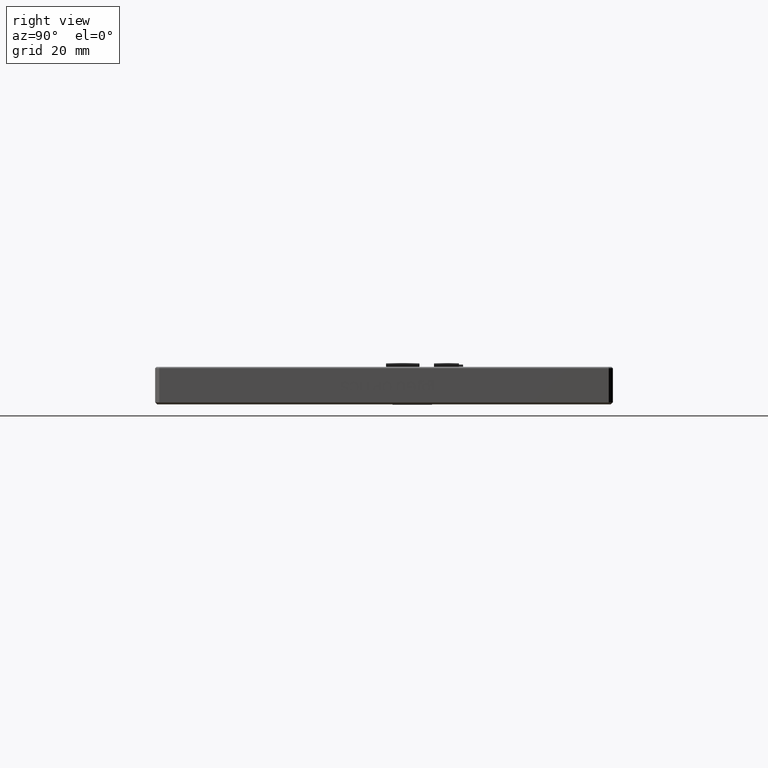
[diagram: clean part render]
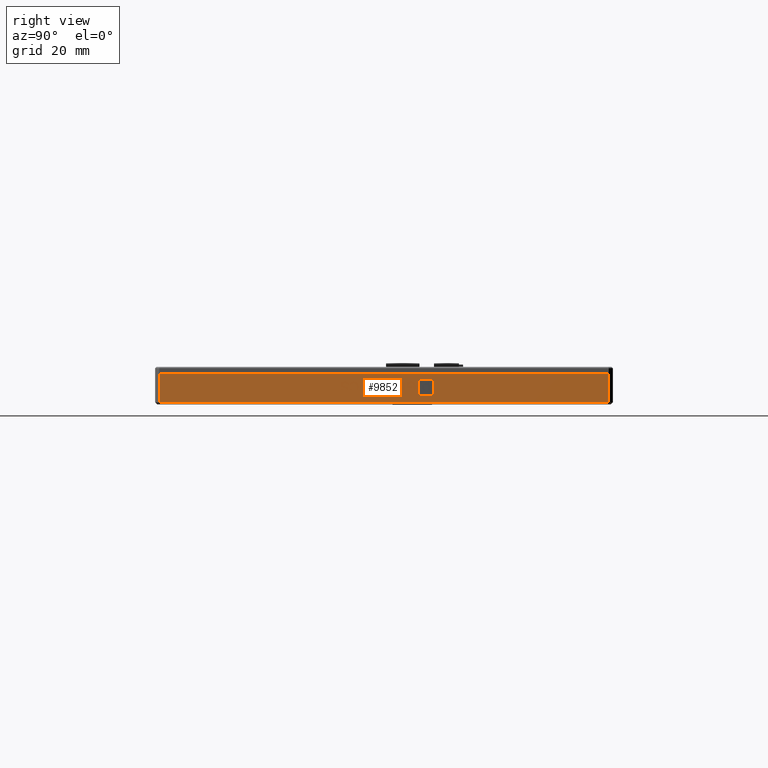
[diagram: same view with one face highlighted and labeled with its STEP entity id]
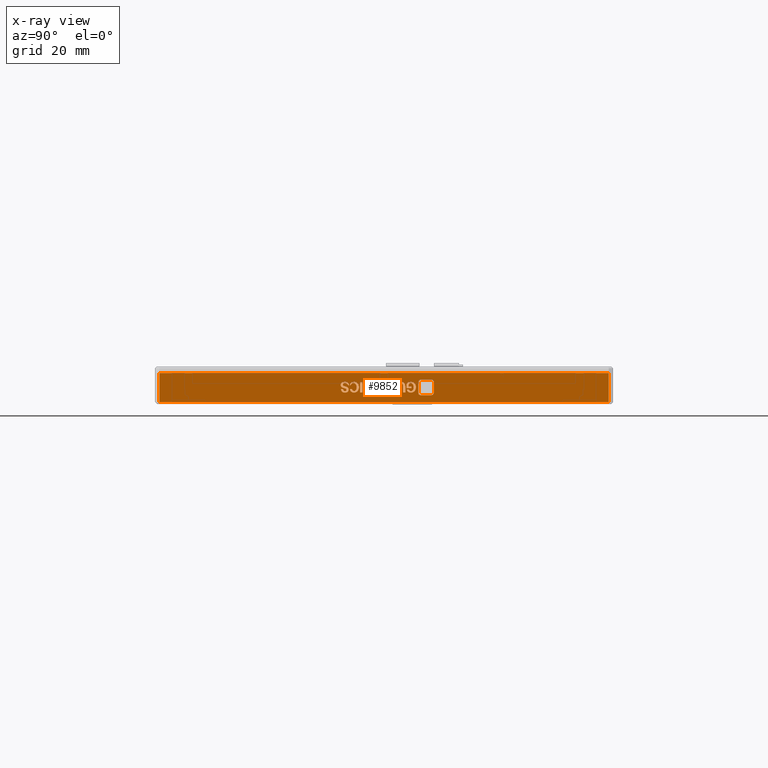
[diagram: x-ray of the same camera — body ghosted, the highlighted face saturated]
A machine part, right view. The second image highlights one B-rep face of the part: STEP entity #9852.
The next image is the same camera in x-ray: the body ghosted, the highlighted face saturated — about 0% of this face is hidden behind the body in this view.
In plain terms, the highlighted planar face has unit normal (-1, 0, 0).
Its self-contained STEP definition (entity closure, byte-faithful):
#38 = CARTESIAN_POINT ( 'NONE',  ( 49.85490645284001200, 11.91109731248707100, -3.065352306022745700 ) ) ;
#41 = EDGE_CURVE ( 'NONE', #4194, #12192, #2866, .T. ) ;
#46 = ORIENTED_EDGE ( 'NONE', *, *, #7529, .F. ) ;
#49 = VERTEX_POINT ( 'NONE', #2862 ) ;
#77 = EDGE_CURVE ( 'NONE', #11119, #4209, #1047, .T. ) ;
#86 = VECTOR ( 'NONE', #14112, 1000.000000000000000 ) ;
#91 = EDGE_CURVE ( 'NONE', #2142, #16992, #16224, .T. ) ;
#94 = LINE ( 'NONE', #2776, #3821 ) ;
#100 = CARTESIAN_POINT ( 'NONE',  ( 49.85490645284001200, 14.00114598744655000, -4.425817422301829400 ) ) ;
#125 = LINE ( 'NONE', #8841, #7125 ) ;
#157 = VERTEX_POINT ( 'NONE', #1993 ) ;
#168 = CARTESIAN_POINT ( 'NONE',  ( 49.85490645284001200, 19.70195575197474000, -5.298086427859076700 ) ) ;
#246 = VERTEX_POINT ( 'NONE', #17402 ) ;
#255 = CARTESIAN_POINT ( 'NONE',  ( 49.85490645284001200, 7.637165457430362500, -4.635119747883194900 ) ) ;
#309 = ORIENTED_EDGE ( 'NONE', *, *, #77, .F. ) ;
#331 = CARTESIAN_POINT ( 'NONE',  ( 49.85490645284001200, -0.7515581769666577200, -4.309538352534309200 ) ) ;
#341 = VERTEX_POINT ( 'NONE', #6967 ) ;
#347 = B_SPLINE_CURVE_WITH_KNOTS ( 'NONE', 3,
 ( #7885, #16121, #10649, #2330 ),
 .UNSPECIFIED., .F., .F.,
 ( 4, 4 ),
 ( 3.000000000000000000, 4.000000000000000000 ),
 .UNSPECIFIED. ) ;
#410 = EDGE_CURVE ( 'NONE', #16621, #1769, #7000, .T. ) ;
#473 = B_SPLINE_CURVE_WITH_KNOTS ( 'NONE', 3,
 ( #17476, #9265, #929, #10639 ),
 .UNSPECIFIED., .F., .F.,
 ( 4, 4 ),
 ( 2.000000000000000000, 3.000000000000000000 ),
 .UNSPECIFIED. ) ;
#474 = CARTESIAN_POINT ( 'NONE',  ( 49.85490645284001200, 13.16941261805753700, -2.065352306022748300 ) ) ;
#514 = B_SPLINE_CURVE_WITH_KNOTS ( 'NONE', 3,
 ( #38, #16583, #6999, #1426 ),
 .UNSPECIFIED., .F., .F.,
 ( 4, 4 ),
 ( 4.000000000000000000, 5.000000000000000000 ),
 .UNSPECIFIED. ) ;
#567 = VERTEX_POINT ( 'NONE', #15238 ) ;
#568 = CARTESIAN_POINT ( 'NONE',  ( 49.85490645284001200, 15.53420439739810300, -3.379305794394840600 ) ) ;
#579 = LINE ( 'NONE', #6382, #4752 ) ;
#594 = CARTESIAN_POINT ( 'NONE',  ( 49.85490645284001200, 13.83112164996690800, -3.576980212999507200 ) ) ;
#618 = CARTESIAN_POINT ( 'NONE',  ( 49.85490645284001200, 0.7163974747369448200, -3.844422073464574700 ) ) ;
#649 = LINE ( 'NONE', #5166, #14937 ) ;
#652 = ORIENTED_EDGE ( 'NONE', *, *, #3001, .F. ) ;
#661 = ORIENTED_EDGE ( 'NONE', *, *, #41, .F. ) ;
#700 = VERTEX_POINT ( 'NONE', #1647 ) ;
#704 = ORIENTED_EDGE ( 'NONE', *, *, #10656, .F. ) ;
#736 = CARTESIAN_POINT ( 'NONE',  ( 49.85490645284001200, 2.658122731632626600, -2.135119747883176700 ) ) ;
#738 = VERTEX_POINT ( 'NONE', #1757 ) ;
#757 = CARTESIAN_POINT ( 'NONE',  ( 49.85490645284001200, 11.91109731248707100, -3.065352306022745700 ) ) ;
#772 = CARTESIAN_POINT ( 'NONE',  ( 49.85490645284001200, 0.2608133752236528900, -2.983956957185482900 ) ) ;
#781 = VECTOR ( 'NONE', #6458, 1000.000000000000000 ) ;
#791 = EDGE_CURVE ( 'NONE', #4297, #6048, #125, .T. ) ;
#807 = B_SPLINE_CURVE_WITH_KNOTS ( 'NONE', 3,
 ( #10583, #9207, #17416, #2268 ),
 .UNSPECIFIED., .F., .F.,
 ( 4, 4 ),
 ( 6.000000000000000000, 7.000000000000000000 ),
 .UNSPECIFIED. ) ;
#858 = ORIENTED_EDGE ( 'NONE', *, *, #5896, .F. ) ;
#883 = CARTESIAN_POINT ( 'NONE',  ( 49.85490645284001200, 12.79704917836055100, -2.425817422301794300 ) ) ;
#890 = CARTESIAN_POINT ( 'NONE',  ( 49.85490645284001200, 6.628376923087428100, -3.007212771138995300 ) ) ;
#906 = EDGE_CURVE ( 'NONE', #3922, #10860, #6637, .T. ) ;
#921 = VERTEX_POINT ( 'NONE', #4970 ) ;
#929 = CARTESIAN_POINT ( 'NONE',  ( 49.85490645284001200, -1.301247198059188200, -2.414189515325015900 ) ) ;
#935 = ORIENTED_EDGE ( 'NONE', *, *, #12179, .F. ) ;
#947 = CARTESIAN_POINT ( 'NONE',  ( 49.85490645284001200, 5.532717106970499900, -4.286282538580842100 ) ) ;
#1040 = CARTESIAN_POINT ( 'NONE',  ( 49.85490645284001200, 1.808406668896086300, -2.766846356860995600 ) ) ;
#1047 = B_SPLINE_CURVE_WITH_KNOTS ( 'NONE', 3,
 ( #15593, #4582, #2926, #8713 ),
 .UNSPECIFIED., .F., .F.,
 ( 4, 4 ),
 ( 4.000000000000000000, 5.000000000000000000 ),
 .UNSPECIFIED. ) ;
#1075 = VERTEX_POINT ( 'NONE', #12576 ) ;
#1081 = CARTESIAN_POINT ( 'NONE',  ( 49.85490645284001200, 13.49485880518590600, -4.635119747883215300 ) ) ;
#1091 = FACE_BOUND ( 'NONE', #16291, .T. ) ;
#1093 = CARTESIAN_POINT ( 'NONE',  ( 49.85490645284001200, 10.28400158506680900, -3.367677887418065700 ) ) ;
#1107 = VERTEX_POINT ( 'NONE', #12640 ) ;
#1110 = PLANE ( 'NONE',  #10768 ) ;
#1122 = CARTESIAN_POINT ( 'NONE',  ( 49.85490645284001200, -0.05374855014156701400, -2.995584864162240900 ) ) ;
#1124 = VECTOR ( 'NONE', #15288, 1000.000000000000000 ) ;
#1149 = CARTESIAN_POINT ( 'NONE',  ( 49.85490645284001200, 14.86161110372563400, -2.088608119976241600 ) ) ;
#1151 = ORIENTED_EDGE ( 'NONE', *, *, #8070, .F. ) ;
#1176 = CARTESIAN_POINT ( 'NONE',  ( 49.85490645284001200, 11.91109731248706400, -4.635119747883210000 ) ) ;
#1177 = CARTESIAN_POINT ( 'NONE',  ( 49.85490645284001200, 11.39041045472621500, -3.216515096720426600 ) ) ;
#1195 = VECTOR ( 'NONE', #11395, 1000.000000000000000 ) ;
#1232 = VECTOR ( 'NONE', #13657, 1000.000000000000000 ) ;
#1254 = LINE ( 'NONE', #9443, #4530 ) ;
#1265 = ORIENTED_EDGE ( 'NONE', *, *, #17551, .F. ) ;
#1270 = DIRECTION ( 'NONE',  ( -0.0000000000000000000, 3.469446951953611000E-015, 1.000000000000000000 ) ) ;
#1333 = EDGE_CURVE ( 'NONE', #11133, #16625, #2819, .T. ) ;
#1335 = CARTESIAN_POINT ( 'NONE',  ( 49.85490645284001200, 0.5067571286038151700, -2.596247384443480100 ) ) ;
#1341 = CARTESIAN_POINT ( 'NONE',  ( 49.85490645284001200, 20.38174465069553100, -1.800760377921140700 ) ) ;
#1367 = EDGE_CURVE ( 'NONE', #4209, #17644, #9410, .T. ) ;
#1402 = CARTESIAN_POINT ( 'NONE',  ( 49.85490645284001200, 13.49485880518591300, -3.193259282766945700 ) ) ;
#1426 = CARTESIAN_POINT ( 'NONE',  ( 49.85490645284001200, 12.44266843201113600, -2.425817422301794300 ) ) ;
#1465 = EDGE_CURVE ( 'NONE', #1545, #9063, #2593, .T. ) ;
#1467 = VECTOR ( 'NONE', #16412, 1000.000000000000000 ) ;
#1514 = FACE_BOUND ( 'NONE', #6318, .T. ) ;
#1534 = CARTESIAN_POINT ( 'NONE',  ( 49.85490645284001200, 7.127362861432503700, -3.007212771138995300 ) ) ;
#1545 = VERTEX_POINT ( 'NONE', #8077 ) ;
#1629 = DIRECTION ( 'NONE',  ( -0.0000000000000000000, 1.000000000000000000, -3.366795205228711200E-015 ) ) ;
#1647 = CARTESIAN_POINT ( 'NONE',  ( 49.85490645284001200, 14.38432608479649800, -3.937445329278560300 ) ) ;
#1679 = ORIENTED_EDGE ( 'NONE', *, *, #9980, .F. ) ;
#1703 = EDGE_CURVE ( 'NONE', #1769, #3494, #12166, .T. ) ;
#1712 = CARTESIAN_POINT ( 'NONE',  ( 49.85490645284001200, 4.241884224331462500, -4.286282538580838500 ) ) ;
#1718 = EDGE_LOOP ( 'NONE', ( #5928, #12906, #8805, #14075, #15298, #14974, #46, #7383, #661, #3371 ) ) ;
#1754 = ORIENTED_EDGE ( 'NONE', *, *, #12919, .F. ) ;
#1757 = CARTESIAN_POINT ( 'NONE',  ( 49.85490645284016200, -45.59984726995016000, -7.000000000025467600 ) ) ;
#1769 = VERTEX_POINT ( 'NONE', #11996 ) ;
#1799 = CARTESIAN_POINT ( 'NONE',  ( 49.85490645284001200, 1.215383413082025600, -2.088608119976194600 ) ) ;
#1816 = CARTESIAN_POINT ( 'NONE',  ( 49.85490645284001200, 10.28400158506680900, -3.367677887418065700 ) ) ;
#1818 = CARTESIAN_POINT ( 'NONE',  ( 49.85490645284001200, 2.318276869004095400, -2.557544031279595400 ) ) ;
#1843 = CARTESIAN_POINT ( 'NONE',  ( 49.85490645284001200, 16.88445266530153100, -1.569661094235487400 ) ) ;
#1866 = CARTESIAN_POINT ( 'NONE',  ( 49.85490645284001200, 0.3223331156238986600, -4.386945058862060900 ) ) ;
#1883 = LINE ( 'NONE', #15616, #5207 ) ;
#1980 = ORIENTED_EDGE ( 'NONE', *, *, #16069, .F. ) ;
#1985 = CARTESIAN_POINT ( 'NONE',  ( 49.85490645284001200, 13.83112164996691200, -2.646747654859941800 ) ) ;
#1993 = CARTESIAN_POINT ( 'NONE',  ( 49.85490645284001200, 1.096062158349729200, -2.425817422301753000 ) ) ;
#2028 = CARTESIAN_POINT ( 'NONE',  ( 49.85490645284001200, 14.31929093065903100, -3.228143003697166800 ) ) ;
#2037 = ORIENTED_EDGE ( 'NONE', *, *, #8417, .F. ) ;
#2050 = EDGE_CURVE ( 'NONE', #17300, #6506, #13520, .T. ) ;
#2084 = CARTESIAN_POINT ( 'NONE',  ( 49.85490645284001200, 16.02609190415831700, -4.204887189743684100 ) ) ;
#2105 = CARTESIAN_POINT ( 'NONE',  ( 49.85490645284001200, 13.83112164996690800, -3.576980212999507200 ) ) ;
#2126 = CARTESIAN_POINT ( 'NONE',  ( 49.85490645284001200, -1.030087111525862100, -3.181631375790139300 ) ) ;
#2142 = VERTEX_POINT ( 'NONE', #10335 ) ;
#2182 = CARTESIAN_POINT ( 'NONE',  ( 49.85490645284001200, 14.86161110372563400, -2.088608119976241600 ) ) ;
#2268 = CARTESIAN_POINT ( 'NONE',  ( 49.85490645284001200, -0.9866852726939761000, -4.670003468813383100 ) ) ;
#2330 = CARTESIAN_POINT ( 'NONE',  ( 49.85490645284001200, -1.474786949276000400, -2.797910445557577400 ) ) ;
#2369 = VERTEX_POINT ( 'NONE', #16021 ) ;
#2371 = VERTEX_POINT ( 'NONE', #5715 ) ;
#2374 = DIRECTION ( 'NONE',  ( -0.0000000000000000000, -0.0000000000000000000, 1.000000000000000000 ) ) ;
#2433 = EDGE_LOOP ( 'NONE', ( #17388, #14748, #12928, #16274, #12408, #12337, #5692 ) ) ;
#2537 = CARTESIAN_POINT ( 'NONE',  ( 49.85490645284001200, 11.70875821026961800, -2.049904766812368900 ) ) ;
#2544 = CARTESIAN_POINT ( 'NONE',  ( 49.85490645284001200, 1.822873948506548600, -3.356049980441290400 ) ) ;
#2563 = LINE ( 'NONE', #1534, #13146 ) ;
#2568 = DIRECTION ( 'NONE',  ( -0.0000000000000000000, -0.0000000000000000000, -1.000000000000000000 ) ) ;
#2593 = LINE ( 'NONE', #947, #6315 ) ;
#2620 = CARTESIAN_POINT ( 'NONE',  ( 49.85490645284001200, 0.2065272746288246400, -3.844422073464571500 ) ) ;
#2630 = CARTESIAN_POINT ( 'NONE',  ( 49.85490645284001200, 16.65331941125984700, -4.618331488160547900 ) ) ;
#2635 = EDGE_CURVE ( 'NONE', #16625, #9735, #4939, .T. ) ;
#2639 = VERTEX_POINT ( 'NONE', #16120 ) ;
#2662 = DIRECTION ( 'NONE',  ( 0.0000000000000000000, -1.000000000000000000, 0.0000000000000000000 ) ) ;
#2663 = CARTESIAN_POINT ( 'NONE',  ( 49.85490645284001200, -1.214443520395411600, -4.301730077791207300 ) ) ;
#2673 = CARTESIAN_POINT ( 'NONE',  ( 49.85490645284001200, 14.89419628490461600, -4.321166259511121800 ) ) ;
#2688 = VECTOR ( 'NONE', #4046, 1000.000000000000000 ) ;
#2750 = EDGE_CURVE ( 'NONE', #12192, #10158, #3385, .T. ) ;
#2776 = CARTESIAN_POINT ( 'NONE',  ( 49.85490645284001200, 7.637165457430372200, -2.135119747883190500 ) ) ;
#2789 = CARTESIAN_POINT ( 'NONE',  ( 49.85490645284001200, -2.006358068799956900, -3.228143003697111300 ) ) ;
#2799 = CARTESIAN_POINT ( 'NONE',  ( 49.85490645284001200, 20.38174465069553100, -2.249422829173265600 ) ) ;
#2803 = CARTESIAN_POINT ( 'NONE',  ( 49.85490645284001200, -0.3212580147168332400, -2.615683566163304400 ) ) ;
#2807 = CARTESIAN_POINT ( 'NONE',  ( 49.85490645284001200, -1.051720426831493700, -2.088608119976187400 ) ) ;
#2808 = ORIENTED_EDGE ( 'NONE', *, *, #1333, .F. ) ;
#2815 = ORIENTED_EDGE ( 'NONE', *, *, #12938, .F. ) ;
#2819 = LINE ( 'NONE', #14438, #17062 ) ;
#2834 = CARTESIAN_POINT ( 'NONE',  ( 49.85490645284001200, 13.84200591173000900, -3.937445329278557200 ) ) ;
#2849 = LINE ( 'NONE', #10145, #3758 ) ;
#2862 = CARTESIAN_POINT ( 'NONE',  ( 49.85490645284001200, 1.204566755429395100, -4.309538352534316300 ) ) ;
#2866 = LINE ( 'NONE', #11165, #1124 ) ;
#2869 = EDGE_CURVE ( 'NONE', #14342, #2639, #3688, .T. ) ;
#2873 = VECTOR ( 'NONE', #10493, 1000.000000000000000 ) ;
#2895 = CARTESIAN_POINT ( 'NONE',  ( 49.85490645284001200, 14.89419628490461600, -4.670003468813438200 ) ) ;
#2926 = CARTESIAN_POINT ( 'NONE',  ( 49.85490645284001200, 14.57605134169204000, -2.418009147558728000 ) ) ;
#2929 = CARTESIAN_POINT ( 'NONE',  ( 49.85490645284001200, 16.88445266530152000, -5.298086427859069600 ) ) ;
#2991 = ORIENTED_EDGE ( 'NONE', *, *, #14124, .F. ) ;
#3001 = EDGE_CURVE ( 'NONE', #700, #12524, #13094, .T. ) ;
#3042 = VECTOR ( 'NONE', #2568, 1000.000000000000000 ) ;
#3122 = CARTESIAN_POINT ( 'NONE',  ( 49.85490645284001200, -0.6395381661500401100, -3.983956957185494500 ) ) ;
#3155 = B_SPLINE_CURVE_WITH_KNOTS ( 'NONE', 3,
 ( #5361, #13556, #8121, #17719 ),
 .UNSPECIFIED., .F., .F.,
 ( 4, 4 ),
 ( 5.000000000000000000, 6.000000000000000000 ),
 .UNSPECIFIED. ) ;
#3211 = CARTESIAN_POINT ( 'NONE',  ( 49.85490645284001200, 0.7888014769004119100, -2.088608119976194600 ) ) ;
#3245 = ORIENTED_EDGE ( 'NONE', *, *, #3592, .F. ) ;
#3252 = DIRECTION ( 'NONE',  ( -0.0000000000000000000, -4.891351440459223400E-015, -1.000000000000000000 ) ) ;
#3264 = EDGE_LOOP ( 'NONE', ( #10903, #1679, #15959, #14801, #12721, #3678, #17580, #13670 ) ) ;
#3273 = CARTESIAN_POINT ( 'NONE',  ( 49.85490645284001200, 8.013314727305813200, -4.189270640257443100 ) ) ;
#3278 = ORIENTED_EDGE ( 'NONE', *, *, #11908, .F. ) ;
#3282 = B_SPLINE_CURVE_WITH_KNOTS ( 'NONE', 3,
 ( #15177, #16560, #2803, #12489 ),
 .UNSPECIFIED., .F., .F.,
 ( 4, 4 ),
 ( 1.000000000000000000, 2.000000000000000000 ),
 .UNSPECIFIED. ) ;
#3292 = CARTESIAN_POINT ( 'NONE',  ( 49.85490645284001200, 7.127362861432507300, -2.135119747883190500 ) ) ;
#3322 = LINE ( 'NONE', #15961, #2873 ) ;
#3334 = B_SPLINE_CURVE_WITH_KNOTS ( 'NONE', 3,
 ( #2673, #4092, #13722, #5510 ),
 .UNSPECIFIED., .F., .F.,
 ( 4, 4 ),
 ( 1.000000000000000000, 2.000000000000000000 ),
 .UNSPECIFIED. ) ;
#3356 = CARTESIAN_POINT ( 'NONE',  ( 49.85490645284001200, 16.05489125515884700, -3.390933701371587900 ) ) ;
#3371 = ORIENTED_EDGE ( 'NONE', *, *, #15345, .F. ) ;
#3385 = LINE ( 'NONE', #757, #10758 ) ;
#3425 = CARTESIAN_POINT ( 'NONE',  ( 49.85490645284001200, 15.51250347798215800, -3.968340407699333400 ) ) ;
#3446 = VERTEX_POINT ( 'NONE', #7244 ) ;
#3494 = VERTEX_POINT ( 'NONE', #7292 ) ;
#3571 = CARTESIAN_POINT ( 'NONE',  ( 49.85490645284001200, 15.01351753963675300, -3.228143003697170300 ) ) ;
#3592 = EDGE_CURVE ( 'NONE', #10554, #246, #13079, .T. ) ;
#3606 = VERTEX_POINT ( 'NONE', #13660 ) ;
#3619 = B_SPLINE_CURVE_WITH_KNOTS ( 'NONE', 3,
 ( #12746, #8686, #331, #10038 ),
 .UNSPECIFIED., .F., .F.,
 ( 4, 4 ),
 ( 9.000000000000000000, 10.00000000000000000 ),
 .UNSPECIFIED. ) ;
#3620 = B_SPLINE_CURVE_WITH_KNOTS ( 'NONE', 3,
 ( #15170, #1335, #16553, #8352 ),
 .UNSPECIFIED., .F., .F.,
 ( 4, 4 ),
 ( 4.000000000000000000, 5.000000000000000000 ),
 .UNSPECIFIED. ) ;
#3678 = ORIENTED_EDGE ( 'NONE', *, *, #16410, .F. ) ;
#3688 = B_SPLINE_CURVE_WITH_KNOTS ( 'NONE', 3,
 ( #4648, #1818, #7434, #17016 ),
 .UNSPECIFIED., .F., .F.,
 ( 4, 4 ),
 ( 7.000000000000000000, 8.000000000000000000 ),
 .UNSPECIFIED. ) ;
#3722 = LINE ( 'NONE', #8232, #14275 ) ;
#3758 = VECTOR ( 'NONE', #17109, 1000.000000000000000 ) ;
#3813 = ORIENTED_EDGE ( 'NONE', *, *, #1367, .F. ) ;
#3821 = VECTOR ( 'NONE', #13822, 1000.000000000000000 ) ;
#3866 = CARTESIAN_POINT ( 'NONE',  ( 49.85490645284001200, 1.945913429306989700, -4.623491840906432100 ) ) ;
#3905 = ORIENTED_EDGE ( 'NONE', *, *, #6869, .F. ) ;
#3922 = VERTEX_POINT ( 'NONE', #11691 ) ;
#3959 = CARTESIAN_POINT ( 'NONE',  ( 49.85490645284001200, 12.45348508966392700, -2.088608119976239400 ) ) ;
#3981 = B_SPLINE_CURVE_WITH_KNOTS ( 'NONE', 3,
 ( #2834, #100, #11193, #2895 ),
 .UNSPECIFIED., .F., .F.,
 ( 4, 4 ),
 ( 13.00000000000000000, 14.00000000000000000 ),
 .UNSPECIFIED. ) ;
#4046 = DIRECTION ( 'NONE',  ( -0.0000000000000000000, -4.393728232776347900E-015, -1.000000000000000000 ) ) ;
#4092 = CARTESIAN_POINT ( 'NONE',  ( 49.85490645284001200, 14.63385285602418800, -4.321166259511121800 ) ) ;
#4145 = CARTESIAN_POINT ( 'NONE',  ( 49.85490645284001200, 4.762571082092213400, -2.135119747883183800 ) ) ;
#4186 = EDGE_CURVE ( 'NONE', #2639, #10726, #10645, .T. ) ;
#4194 = VERTEX_POINT ( 'NONE', #10106 ) ;
#4209 = VERTEX_POINT ( 'NONE', #17067 ) ;
#4243 = DIRECTION ( 'NONE',  ( -0.0000000000000000000, -1.000000000000000000, -0.0000000000000000000 ) ) ;
#4297 = VERTEX_POINT ( 'NONE', #11868 ) ;
#4314 = VERTEX_POINT ( 'NONE', #7712 ) ;
#4473 = CARTESIAN_POINT ( 'NONE',  ( 49.85490645284001200, 3.471738199453060100, -4.635119747883180700 ) ) ;
#4519 = CARTESIAN_POINT ( 'NONE',  ( 49.85490645284001200, 15.01351753963675000, -3.576980212999514300 ) ) ;
#4530 = VECTOR ( 'NONE', #10822, 1000.000000000000000 ) ;
#4582 = CARTESIAN_POINT ( 'NONE',  ( 49.85490645284001200, 14.39892857262758600, -2.545916124302910300 ) ) ;
#4624 = CARTESIAN_POINT ( 'NONE',  ( 49.85490645284001200, 0.4706565336878281700, -2.228143003697121000 ) ) ;
#4647 = CARTESIAN_POINT ( 'NONE',  ( 49.85490645284001200, 9.860935062622310500, -2.135119747883197600 ) ) ;
#4648 = CARTESIAN_POINT ( 'NONE',  ( 49.85490645284001200, 2.354377463920415400, -3.379305794394795700 ) ) ;
#4651 = EDGE_CURVE ( 'NONE', #6048, #16924, #2563, .T. ) ;
#4662 = CARTESIAN_POINT ( 'NONE',  ( 49.85490645284001200, -1.442269372207434500, -3.890933701371529300 ) ) ;
#4694 = CARTESIAN_POINT ( 'NONE',  ( 49.85490645284001200, 0.6658972043204654000, -4.662195194070273300 ) ) ;
#4723 = VECTOR ( 'NONE', #17749, 1000.000000000000000 ) ;
#4726 = CARTESIAN_POINT ( 'NONE',  ( 49.85490645284001200, 16.65331941125985800, -2.249422829173251900 ) ) ;
#4752 = VECTOR ( 'NONE', #14636, 1000.000000000000000 ) ;
#4827 = EDGE_CURVE ( 'NONE', #341, #11874, #579, .T. ) ;
#4837 = CARTESIAN_POINT ( 'NONE',  ( 49.85490645284001200, 15.29928011400138000, -4.282293896071431400 ) ) ;
#4897 = CARTESIAN_POINT ( 'NONE',  ( 49.85490645284001200, 13.84200591173000900, -3.937445329278557200 ) ) ;
#4908 = B_SPLINE_CURVE_WITH_KNOTS ( 'NONE', 3,
 ( #15182, #16564, #11117, #2807 ),
 .UNSPECIFIED., .F., .F.,
 ( 4, 4 ),
 ( 13.00000000000000000, 14.00000000000000000 ),
 .UNSPECIFIED. ) ;
#4935 = CARTESIAN_POINT ( 'NONE',  ( 49.85490645284001200, 14.85079444607278600, -2.425817422301801400 ) ) ;
#4939 = LINE ( 'NONE', #14736, #12266 ) ;
#4946 = CARTESIAN_POINT ( 'NONE',  ( 49.85490645284001200, 20.38174465069552700, -4.931021206707927500 ) ) ;
#4965 = CARTESIAN_POINT ( 'NONE',  ( 49.85490645284001200, 2.354377463920415400, -3.379305794394795700 ) ) ;
#4966 = LINE ( 'NONE', #5457, #1232 ) ;
#4970 = CARTESIAN_POINT ( 'NONE',  ( 49.85490645284001200, 3.471738199453058300, -4.286282538580835000 ) ) ;
#4972 = VERTEX_POINT ( 'NONE', #5320 ) ;
#4977 = VECTOR ( 'NONE', #5280, 1000.000000000000000 ) ;
#4987 = VERTEX_POINT ( 'NONE', #14973 ) ;
#5025 = LINE ( 'NONE', #594, #17027 ) ;
#5128 = CARTESIAN_POINT ( 'NONE',  ( 49.85490645284001200, 12.97417194742489200, -3.065352306022749200 ) ) ;
#5150 = ORIENTED_EDGE ( 'NONE', *, *, #12096, .F. ) ;
#5166 = CARTESIAN_POINT ( 'NONE',  ( 49.85490645284001200, -0.05374855014156701400, -2.553724399045945900 ) ) ;
#5176 = LINE ( 'NONE', #9467, #15686 ) ;
#5207 = VECTOR ( 'NONE', #3252, 1000.000000000000000 ) ;
#5226 = CARTESIAN_POINT ( 'NONE',  ( 49.85490645284001200, 1.096062158349729200, -2.425817422301753000 ) ) ;
#5269 = EDGE_CURVE ( 'NONE', #567, #16870, #11604, .T. ) ;
#5280 = DIRECTION ( 'NONE',  ( -0.0000000000000000000, -1.000000000000000000, 4.997571264320339800E-015 ) ) ;
#5284 = FACE_BOUND ( 'NONE', #2433, .T. ) ;
#5286 = CARTESIAN_POINT ( 'NONE',  ( 49.85490645284001200, 9.123306614812687300, -4.670003468813417800 ) ) ;
#5291 = CARTESIAN_POINT ( 'NONE',  ( 49.85490645284001200, 3.471738199453057000, -4.635119747883180700 ) ) ;
#5297 = CARTESIAN_POINT ( 'NONE',  ( 49.85490645284001200, 1.237084332497962600, -4.670003468813390200 ) ) ;
#5320 = CARTESIAN_POINT ( 'NONE',  ( 49.85490645284001200, -1.030087111525862100, -3.181631375790139300 ) ) ;
#5332 = CARTESIAN_POINT ( 'NONE',  ( 49.85490645284001200, 16.02609190415832100, -2.553724399046001500 ) ) ;
#5361 = CARTESIAN_POINT ( 'NONE',  ( 49.85490645284001200, -0.9866852726939761000, -4.670003468813383100 ) ) ;
#5372 = CARTESIAN_POINT ( 'NONE',  ( 49.85490645284001200, 5.782243878198194400, -3.821166259511087100 ) ) ;
#5457 = CARTESIAN_POINT ( 'NONE',  ( 49.85490645284001200, -1.941255310552399100, -3.890933701371526200 ) ) ;
#5492 = CARTESIAN_POINT ( 'NONE',  ( 49.85490645284001200, 4.241884224331469600, -2.135119747883180300 ) ) ;
#5493 = CARTESIAN_POINT ( 'NONE',  ( 49.85490645284001200, -1.474786949276000400, -2.797910445557577400 ) ) ;
#5510 = CARTESIAN_POINT ( 'NONE',  ( 49.85490645284001200, 14.38432608479649800, -3.937445329278560300 ) ) ;
#5559 = CARTESIAN_POINT ( 'NONE',  ( 49.85490645284001200, 20.38174465069553100, -2.249422829173265600 ) ) ;
#5623 = CARTESIAN_POINT ( 'NONE',  ( 49.85490645284001200, -1.688010313256444400, -3.491596221652761800 ) ) ;
#5629 = CARTESIAN_POINT ( 'NONE',  ( 49.85490645284001200, 20.15067934904207900, -1.569661094235494500 ) ) ;
#5631 = CARTESIAN_POINT ( 'NONE',  ( 49.85490645284001200, 8.385678167003140600, -2.135119747883197600 ) ) ;
#5692 = ORIENTED_EDGE ( 'NONE', *, *, #4827, .F. ) ;
#5715 = CARTESIAN_POINT ( 'NONE',  ( 49.85490645284001200, 5.782243878198194400, -3.821166259511087100 ) ) ;
#5777 = VECTOR ( 'NONE', #12305, 1000.000000000000000 ) ;
#5800 = CARTESIAN_POINT ( 'NONE',  ( 49.85490645284001200, 12.44266843201113600, -2.425817422301794300 ) ) ;
#5805 = EDGE_CURVE ( 'NONE', #157, #11245, #14843, .T. ) ;
#5870 = CARTESIAN_POINT ( 'NONE',  ( 49.85490645284184600, -45.59984726994868300, -2.369254987512433300E-011 ) ) ;
#5886 = CARTESIAN_POINT ( 'NONE',  ( 49.85490645284001200, 6.628376923087428100, -3.007212771138995300 ) ) ;
#5896 = EDGE_CURVE ( 'NONE', #6506, #12247, #4966, .T. ) ;
#5928 = ORIENTED_EDGE ( 'NONE', *, *, #11278, .F. ) ;
#5957 = B_SPLINE_CURVE_WITH_KNOTS ( 'NONE', 3,
 ( #15228, #5631, #15287, #7091 ),
 .UNSPECIFIED., .F., .F.,
 ( 4, 4 ),
 ( 0.0000000000000000000, 1.000000000000000000 ),
 .UNSPECIFIED. ) ;
#6048 = VERTEX_POINT ( 'NONE', #3292 ) ;
#6056 = DIRECTION ( 'NONE',  ( -0.0000000000000000000, -3.638688266683050800E-015, -1.000000000000000000 ) ) ;
#6075 = EDGE_CURVE ( 'NONE', #17644, #8936, #13553, .T. ) ;
#6077 = B_SPLINE_CURVE_WITH_KNOTS ( 'NONE', 3,
 ( #11548, #3273, #15702, #7473 ),
 .UNSPECIFIED., .F., .F.,
 ( 4, 4 ),
 ( 3.000000000000000000, 4.000000000000000000 ),
 .UNSPECIFIED. ) ;
#6089 = VERTEX_POINT ( 'NONE', #6213 ) ;
#6103 = CARTESIAN_POINT ( 'NONE',  ( 49.85490645284001200, 3.167992931740627200, -4.635119747883178900 ) ) ;
#6109 = DIRECTION ( 'NONE',  ( -0.0000000000000000000, -1.000000000000000000, 2.929152229180571400E-015 ) ) ;
#6120 = B_SPLINE_CURVE_WITH_KNOTS ( 'NONE', 3,
 ( #12481, #2789, #5623, #15222 ),
 .UNSPECIFIED., .F., .F.,
 ( 4, 4 ),
 ( 11.00000000000000000, 12.00000000000000000 ),
 .UNSPECIFIED. ) ;
#6139 = ORIENTED_EDGE ( 'NONE', *, *, #10725, .F. ) ;
#6142 = CARTESIAN_POINT ( 'NONE',  ( 49.85490645284001200, 14.31929093065903300, -2.088608119976240300 ) ) ;
#6161 = ORIENTED_EDGE ( 'NONE', *, *, #5805, .F. ) ;
#6213 = CARTESIAN_POINT ( 'NONE',  ( 49.85490645284001200, 13.49485880518590600, -4.635119747883215300 ) ) ;
#6257 = LINE ( 'NONE', #11321, #16783 ) ;
#6279 = DIRECTION ( 'NONE',  ( -0.0000000000000000000, -1.000000000000000000, 6.397414524221001400E-015 ) ) ;
#6284 = CARTESIAN_POINT ( 'NONE',  ( 49.85490645284001200, 17.33304715283089000, -5.298086427859069600 ) ) ;
#6289 = B_SPLINE_CURVE_WITH_KNOTS ( 'NONE', 3,
 ( #8482, #9841, #2929, #12600 ),
 .UNSPECIFIED., .F., .F.,
 ( 4, 4 ),
 ( 3.000000000000000000, 4.000000000000000000 ),
 .UNSPECIFIED. ) ;
#6291 = B_SPLINE_CURVE_WITH_KNOTS ( 'NONE', 3,
 ( #11977, #883, #13325, #5128 ),
 .UNSPECIFIED., .F., .F.,
 ( 4, 4 ),
 ( 3.000000000000000000, 4.000000000000000000 ),
 .UNSPECIFIED. ) ;
#6295 = ORIENTED_EDGE ( 'NONE', *, *, #9854, .F. ) ;
#6315 = VECTOR ( 'NONE', #9287, 1000.000000000000000 ) ;
#6317 = CARTESIAN_POINT ( 'NONE',  ( 49.85490645284001200, 15.51250347798216100, -2.782293896071416800 ) ) ;
#6318 = EDGE_LOOP ( 'NONE', ( #16831, #15840, #8198, #2991, #12835, #5150, #8674, #935, #704, #858, #15586, #1265, #17562, #11914 ) ) ;
#6382 = CARTESIAN_POINT ( 'NONE',  ( 49.85490645284001200, 7.637165457430362500, -4.635119747883194900 ) ) ;
#6389 = EDGE_CURVE ( 'NONE', #738, #11911, #16158, .T. ) ;
#6405 = VERTEX_POINT ( 'NONE', #4145 ) ;
#6435 = EDGE_CURVE ( 'NONE', #3494, #6841, #12679, .T. ) ;
#6458 = DIRECTION ( 'NONE',  ( -0.0000000000000000000, -4.420332412859421300E-015, -1.000000000000000000 ) ) ;
#6476 = DIRECTION ( 'NONE',  ( -0.0000000000000000000, -3.469446951953613800E-015, -1.000000000000000000 ) ) ;
#6488 = CARTESIAN_POINT ( 'NONE',  ( 49.85490645284001200, -1.051720426831498800, -3.623491840906406300 ) ) ;
#6504 = VECTOR ( 'NONE', #7691, 1000.000000000000000 ) ;
#6506 = VERTEX_POINT ( 'NONE', #15333 ) ;
#6538 = VECTOR ( 'NONE', #2662, 1000.000000000000000 ) ;
#6547 = ORIENTED_EDGE ( 'NONE', *, *, #9843, .F. ) ;
#6637 = B_SPLINE_CURVE_WITH_KNOTS ( 'NONE', 3,
 ( #16214, #7989, #17598, #9372 ),
 .UNSPECIFIED., .F., .F.,
 ( 4, 4 ),
 ( 12.00000000000000000, 13.00000000000000000 ),
 .UNSPECIFIED. ) ;
#6668 = DIRECTION ( 'NONE',  ( -0.0000000000000000000, -4.972873964466560400E-015, -1.000000000000000000 ) ) ;
#6730 = CARTESIAN_POINT ( 'NONE',  ( 49.85490645284001200, 64.56015273004999200, -7.187088229858998600 ) ) ;
#6739 = VERTEX_POINT ( 'NONE', #5493 ) ;
#6767 = CARTESIAN_POINT ( 'NONE',  ( 49.85490645284001200, 1.609650584526103500, -4.293921803048113400 ) ) ;
#6795 = EDGE_CURVE ( 'NONE', #11874, #4297, #94, .T. ) ;
#6807 = CARTESIAN_POINT ( 'NONE',  ( 49.85490645284001200, 1.204566755429395100, -4.309538352534316300 ) ) ;
#6841 = VERTEX_POINT ( 'NONE', #7006 ) ;
#6869 = EDGE_CURVE ( 'NONE', #12524, #1075, #3981, .T. ) ;
#6896 = CARTESIAN_POINT ( 'NONE',  ( 49.85490645284001200, 8.400152730050004700, -7.000000000023993300 ) ) ;
#6946 = ORIENTED_EDGE ( 'NONE', *, *, #9658, .F. ) ;
#6967 = CARTESIAN_POINT ( 'NONE',  ( 49.85490645284001200, 6.628376923087421000, -4.635119747883191400 ) ) ;
#6999 = CARTESIAN_POINT ( 'NONE',  ( 49.85490645284001200, 12.07382040605103600, -2.410200872815602100 ) ) ;
#7000 = LINE ( 'NONE', #168, #13847 ) ;
#7006 = CARTESIAN_POINT ( 'NONE',  ( 49.85490645284001200, 20.38174465069553100, -2.249422829173265600 ) ) ;
#7013 = ORIENTED_EDGE ( 'NONE', *, *, #10708, .F. ) ;
#7091 = CARTESIAN_POINT ( 'NONE',  ( 49.85490645284001200, 7.962611644558463400, -3.367677887418058600 ) ) ;
#7125 = VECTOR ( 'NONE', #10203, 1000.000000000000000 ) ;
#7137 = ORIENTED_EDGE ( 'NONE', *, *, #14610, .F. ) ;
#7167 = DIRECTION ( 'NONE',  ( -0.0000000000000000000, -3.978299171573521300E-015, -1.000000000000000000 ) ) ;
#7194 = EDGE_CURVE ( 'NONE', #9063, #10502, #10498, .T. ) ;
#7244 = CARTESIAN_POINT ( 'NONE',  ( 49.85490645284001200, 16.65331941125985800, -2.249422829173251900 ) ) ;
#7267 = VERTEX_POINT ( 'NONE', #772 ) ;
#7273 = CARTESIAN_POINT ( 'NONE',  ( 49.85490645284001200, -1.051720426831498800, -3.623491840906406300 ) ) ;
#7292 = CARTESIAN_POINT ( 'NONE',  ( 49.85490645284001200, 20.38174465069552400, -4.482392731651038400 ) ) ;
#7357 = CARTESIAN_POINT ( 'NONE',  ( 49.85490645284001200, 13.49485880518591300, -3.193259282766945700 ) ) ;
#7364 = LINE ( 'NONE', #17292, #6504 ) ;
#7376 = VERTEX_POINT ( 'NONE', #9347 ) ;
#7383 = ORIENTED_EDGE ( 'NONE', *, *, #2750, .F. ) ;
#7421 = EDGE_CURVE ( 'NONE', #9735, #15385, #5176, .T. ) ;
#7434 = CARTESIAN_POINT ( 'NONE',  ( 49.85490645284001200, 1.938612185391317900, -2.127480483415888000 ) ) ;
#7461 = CARTESIAN_POINT ( 'NONE',  ( 49.85490645284001200, 17.33304715283090400, -1.569661094235487400 ) ) ;
#7473 = CARTESIAN_POINT ( 'NONE',  ( 49.85490645284001200, 9.123306614812687300, -4.670003468813417800 ) ) ;
#7529 = EDGE_CURVE ( 'NONE', #10158, #16487, #514, .T. ) ;
#7540 = EDGE_CURVE ( 'NONE', #16924, #13418, #9041, .T. ) ;
#7549 = CARTESIAN_POINT ( 'NONE',  ( 49.85490645284001200, 15.53420439739810300, -3.379305794394840600 ) ) ;
#7585 = DIRECTION ( 'NONE',  ( -0.0000000000000000000, -1.000000000000000000, -0.0000000000000000000 ) ) ;
#7614 = CARTESIAN_POINT ( 'NONE',  ( 49.85490645284001200, 4.241884224331462500, -4.286282538580838500 ) ) ;
#7630 = CARTESIAN_POINT ( 'NONE',  ( 49.85490645284001200, 15.63912597662990900, -4.631131105373763800 ) ) ;
#7675 = CARTESIAN_POINT ( 'NONE',  ( 49.85490645284001200, -0.05733156798882338400, -3.565352306022704400 ) ) ;
#7691 = DIRECTION ( 'NONE',  ( -0.0000000000000000000, 1.000000000000000000, -5.868503066130220000E-015 ) ) ;
#7697 = VERTEX_POINT ( 'NONE', #15554 ) ;
#7712 = CARTESIAN_POINT ( 'NONE',  ( 49.85490645284001200, 13.49485880518591300, -3.193259282766945700 ) ) ;
#7885 = CARTESIAN_POINT ( 'NONE',  ( 49.85490645284001200, -1.030087111525862100, -3.181631375790139300 ) ) ;
#7893 = CARTESIAN_POINT ( 'NONE',  ( 49.85490645284001200, 4.762571082092206300, -4.286282538580842100 ) ) ;
#7912 = VERTEX_POINT ( 'NONE', #3571 ) ;
#7925 = ORIENTED_EDGE ( 'NONE', *, *, #6389, .F. ) ;
#7989 = CARTESIAN_POINT ( 'NONE',  ( 49.85490645284001200, -1.695311557172286300, -2.088608119976183900 ) ) ;
#8058 = CARTESIAN_POINT ( 'NONE',  ( 49.85490645284001200, 0.2608133752236546100, -2.507212771138970500 ) ) ;
#8063 = CARTESIAN_POINT ( 'NONE',  ( 49.85490645284001200, 2.318276869004090000, -4.193259282766894600 ) ) ;
#8070 = EDGE_CURVE ( 'NONE', #8936, #700, #3334, .T. ) ;
#8074 = FACE_OUTER_BOUND ( 'NONE', #11057, .T. ) ;
#8077 = CARTESIAN_POINT ( 'NONE',  ( 49.85490645284001200, 5.532717106970498100, -4.635119747883187800 ) ) ;
#8120 = DIRECTION ( 'NONE',  ( 0.0000000000000000000, -1.000000000000000000, 0.0000000000000000000 ) ) ;
#8121 = CARTESIAN_POINT ( 'NONE',  ( 49.85490645284001200, -0.1297355701521760700, -4.433456686769034100 ) ) ;
#8133 = CARTESIAN_POINT ( 'NONE',  ( 49.85490645284001200, 6.057122190799891100, -4.635119747883189600 ) ) ;
#8135 = EDGE_CURVE ( 'NONE', #10860, #9100, #6120, .T. ) ;
#8153 = CARTESIAN_POINT ( 'NONE',  ( 49.85490645284001200, 11.39041045472621500, -3.216515096720426600 ) ) ;
#8162 = CARTESIAN_POINT ( 'NONE',  ( 49.85490645284001200, -45.59984726994999700, -3.500000000023749400 ) ) ;
#8198 = ORIENTED_EDGE ( 'NONE', *, *, #14391, .F. ) ;
#8205 = CARTESIAN_POINT ( 'NONE',  ( 49.85490645284001200, 0.9514569663540608500, -4.309538352534316300 ) ) ;
#8232 = CARTESIAN_POINT ( 'NONE',  ( 49.85490645284001200, 3.167992931740635700, -2.135119747883176700 ) ) ;
#8320 = CARTESIAN_POINT ( 'NONE',  ( 49.85490645284001200, 12.97417194742488500, -4.635119747883213600 ) ) ;
#8348 = EDGE_CURVE ( 'NONE', #246, #15119, #8924, .T. ) ;
#8352 = CARTESIAN_POINT ( 'NONE',  ( 49.85490645284001200, 1.096062158349729200, -2.425817422301753000 ) ) ;
#8391 = CARTESIAN_POINT ( 'NONE',  ( 49.85490645284016200, 62.40015273005016600, -7.000000000025468500 ) ) ;
#8417 = EDGE_CURVE ( 'NONE', #11150, #7697, #10291, .T. ) ;
#8431 = ORIENTED_EDGE ( 'NONE', *, *, #6075, .F. ) ;
#8482 = CARTESIAN_POINT ( 'NONE',  ( 49.85490645284001200, 16.65331941125985800, -4.618331488160547900 ) ) ;
#8495 = EDGE_CURVE ( 'NONE', #4987, #11911, #3322, .T. ) ;
#8501 = FACE_BOUND ( 'NONE', #14733, .T. ) ;
#8593 = CARTESIAN_POINT ( 'NONE',  ( 49.85490645284001200, 7.127362861432503700, -3.007212771138995300 ) ) ;
#8612 = LINE ( 'NONE', #1712, #1195 ) ;
#8626 = VECTOR ( 'NONE', #16543, 1000.000000000000000 ) ;
#8634 = ORIENTED_EDGE ( 'NONE', *, *, #7421, .F. ) ;
#8674 = ORIENTED_EDGE ( 'NONE', *, *, #16623, .F. ) ;
#8686 = CARTESIAN_POINT ( 'NONE',  ( 49.85490645284001200, -0.6322369222343613400, -4.200898547234155300 ) ) ;
#8687 = CARTESIAN_POINT ( 'NONE',  ( 49.85490645284001200, 5.782243878198194400, -3.821166259511087100 ) ) ;
#8706 = VERTEX_POINT ( 'NONE', #8391 ) ;
#8713 = CARTESIAN_POINT ( 'NONE',  ( 49.85490645284001200, 14.85079444607278600, -2.425817422301801400 ) ) ;
#8766 = B_SPLINE_CURVE_WITH_KNOTS ( 'NONE', 3,
 ( #14933, #5332, #9473, #1149 ),
 .UNSPECIFIED., .F., .F.,
 ( 4, 4 ),
 ( 11.00000000000000000, 12.00000000000000000 ),
 .UNSPECIFIED. ) ;
#8798 = VECTOR ( 'NONE', #6056, 1000.000000000000000 ) ;
#8805 = ORIENTED_EDGE ( 'NONE', *, *, #9996, .F. ) ;
#8828 = CARTESIAN_POINT ( 'NONE',  ( 49.85490645284001200, 13.51655972460185500, -2.433456686769107400 ) ) ;
#8841 = CARTESIAN_POINT ( 'NONE',  ( 49.85490645284001200, 7.127362861432507300, -2.135119747883190500 ) ) ;
#8878 = EDGE_CURVE ( 'NONE', #10726, #7267, #16113, .T. ) ;
#8882 = LINE ( 'NONE', #9625, #1467 ) ;
#8904 = ORIENTED_EDGE ( 'NONE', *, *, #14827, .F. ) ;
#8924 = B_SPLINE_CURVE_WITH_KNOTS ( 'NONE', 3,
 ( #11561, #1866, #4694, #14339 ),
 .UNSPECIFIED., .F., .F.,
 ( 4, 4 ),
 ( 9.000000000000000000, 10.00000000000000000 ),
 .UNSPECIFIED. ) ;
#8934 = FACE_BOUND ( 'NONE', #9740, .T. ) ;
#8936 = VERTEX_POINT ( 'NONE', #11595 ) ;
#9032 = CARTESIAN_POINT ( 'NONE',  ( 49.85490645284001200, 2.658122731632621200, -4.635119747883177200 ) ) ;
#9041 = LINE ( 'NONE', #11141, #15911 ) ;
#9063 = VERTEX_POINT ( 'NONE', #13261 ) ;
#9071 = CARTESIAN_POINT ( 'NONE',  ( 49.85490645284001200, 14.31929093065903100, -2.809538352534387300 ) ) ;
#9083 = EDGE_CURVE ( 'NONE', #16487, #15546, #6291, .T. ) ;
#9086 = B_SPLINE_CURVE_WITH_KNOTS ( 'NONE', 3,
 ( #17277, #7675, #10448, #2126 ),
 .UNSPECIFIED., .F., .F.,
 ( 4, 4 ),
 ( 4.000000000000000000, 5.000000000000000000 ),
 .UNSPECIFIED. ) ;
#9100 = VERTEX_POINT ( 'NONE', #6488 ) ;
#9103 = VECTOR ( 'NONE', #6668, 1000.000000000000000 ) ;
#9206 = B_SPLINE_CURVE_WITH_KNOTS ( 'NONE', 3,
 ( #7357, #8828, #474, #10184 ),
 .UNSPECIFIED., .F., .F.,
 ( 4, 4 ),
 ( 9.000000000000000000, 10.00000000000000000 ),
 .UNSPECIFIED. ) ;
#9207 = CARTESIAN_POINT ( 'NONE',  ( 49.85490645284001200, -1.854451632888840300, -4.394753333605169000 ) ) ;
#9265 = CARTESIAN_POINT ( 'NONE',  ( 49.85490645284001200, -1.467485705360541000, -2.542096492069198600 ) ) ;
#9287 = DIRECTION ( 'NONE',  ( -0.0000000000000000000, 4.972873964466560400E-015, 1.000000000000000000 ) ) ;
#9347 = CARTESIAN_POINT ( 'NONE',  ( 49.85490645284001200, -0.1080346507362842100, -3.983956957185494500 ) ) ;
#9370 = ORIENTED_EDGE ( 'NONE', *, *, #12314, .F. ) ;
#9372 = CARTESIAN_POINT ( 'NONE',  ( 49.85490645284001200, -2.006358068799955200, -2.832794166487819800 ) ) ;
#9375 = CARTESIAN_POINT ( 'NONE',  ( 49.85490645284001200, 1.566248745694219100, -2.456712500722525700 ) ) ;
#9378 = VERTEX_POINT ( 'NONE', #14917 ) ;
#9410 = B_SPLINE_CURVE_WITH_KNOTS ( 'NONE', 3,
 ( #4935, #13088, #6317, #15945 ),
 .UNSPECIFIED., .F., .F.,
 ( 4, 4 ),
 ( 3.000000000000000000, 4.000000000000000000 ),
 .UNSPECIFIED. ) ;
#9435 = CARTESIAN_POINT ( 'NONE',  ( 49.85490645284001200, 10.24790099015070900, -4.204887189743666400 ) ) ;
#9443 = CARTESIAN_POINT ( 'NONE',  ( 49.85490645284001200, 15.01351753963675300, -3.228143003697170300 ) ) ;
#9467 = CARTESIAN_POINT ( 'NONE',  ( 49.85490645284001200, 3.167992931740627200, -4.635119747883178900 ) ) ;
#9473 = CARTESIAN_POINT ( 'NONE',  ( 49.85490645284001200, 15.62824171486681900, -2.119672208672831900 ) ) ;
#9475 = VECTOR ( 'NONE', #6279, 1000.000000000000000 ) ;
#9567 = CARTESIAN_POINT ( 'NONE',  ( 49.85490645284001200, 0.7163974747369448200, -3.844422073464574700 ) ) ;
#9591 = VERTEX_POINT ( 'NONE', #4473 ) ;
#9625 = CARTESIAN_POINT ( 'NONE',  ( 49.85490645284001200, 14.31929093065903100, -2.809538352534387300 ) ) ;
#9658 = EDGE_CURVE ( 'NONE', #14282, #921, #2849, .T. ) ;
#9710 = CARTESIAN_POINT ( 'NONE',  ( 49.85490645284001200, -2.006358068799955200, -2.832794166487819800 ) ) ;
#9720 = EDGE_CURVE ( 'NONE', #1075, #17040, #10455, .T. ) ;
#9735 = VERTEX_POINT ( 'NONE', #9032 ) ;
#9740 = EDGE_LOOP ( 'NONE', ( #8634, #17496, #2808, #16904 ) ) ;
#9745 = ORIENTED_EDGE ( 'NONE', *, *, #10613, .F. ) ;
#9752 = VERTEX_POINT ( 'NONE', #10585 ) ;
#9841 = CARTESIAN_POINT ( 'NONE',  ( 49.85490645284001200, 16.65331941125985100, -5.067089072758675700 ) ) ;
#9843 = EDGE_CURVE ( 'NONE', #15119, #14342, #11839, .T. ) ;
#9852 = ADVANCED_FACE ( 'NONE', ( #8934, #8501, #1514, #12153, #15793, #5284, #1091, #15356, #11717, #8074 ), #1110, .F. ) ;
#9854 = EDGE_CURVE ( 'NONE', #4987, #8706, #13622, .T. ) ;
#9972 = CARTESIAN_POINT ( 'NONE',  ( 49.85490645284001200, 4.762571082092213400, -2.135119747883183800 ) ) ;
#9980 = EDGE_CURVE ( 'NONE', #6841, #567, #13190, .T. ) ;
#9989 = ORIENTED_EDGE ( 'NONE', *, *, #10352, .F. ) ;
#9996 = EDGE_CURVE ( 'NONE', #6089, #4314, #13833, .T. ) ;
#10038 = CARTESIAN_POINT ( 'NONE',  ( 49.85490645284001200, -0.9975019303469865300, -4.309538352534309200 ) ) ;
#10097 = VERTEX_POINT ( 'NONE', #4519 ) ;
#10106 = CARTESIAN_POINT ( 'NONE',  ( 49.85490645284001200, 11.39041045472620800, -4.635119747883208200 ) ) ;
#10117 = B_SPLINE_CURVE_WITH_KNOTS ( 'NONE', 3,
 ( #2544, #16311, #6767, #16371 ),
 .UNSPECIFIED., .F., .F.,
 ( 4, 4 ),
 ( 2.000000000000000000, 3.000000000000000000 ),
 .UNSPECIFIED. ) ;
#10145 = CARTESIAN_POINT ( 'NONE',  ( 49.85490645284001200, 3.471738199453058300, -4.286282538580835000 ) ) ;
#10158 = VERTEX_POINT ( 'NONE', #14213 ) ;
#10184 = CARTESIAN_POINT ( 'NONE',  ( 49.85490645284001200, 12.45348508966392700, -2.088608119976239400 ) ) ;
#10203 = DIRECTION ( 'NONE',  ( -0.0000000000000000000, -1.000000000000000000, -0.0000000000000000000 ) ) ;
#10217 = CARTESIAN_POINT ( 'NONE',  ( 49.85490645284001200, 17.33304715283090400, -1.569661094235487400 ) ) ;
#10245 = CARTESIAN_POINT ( 'NONE',  ( 49.85490645284001200, 14.86161110372563400, -2.088608119976241600 ) ) ;
#10291 = B_SPLINE_CURVE_WITH_KNOTS ( 'NONE', 3,
 ( #10245, #6142, #10314, #1985 ),
 .UNSPECIFIED., .F., .F.,
 ( 4, 4 ),
 ( 10.00000000000000000, 11.00000000000000000 ),
 .UNSPECIFIED. ) ;
#10314 = CARTESIAN_POINT ( 'NONE',  ( 49.85490645284001200, 13.97586205018319700, -2.274654631604155200 ) ) ;
#10330 = VECTOR ( 'NONE', #16482, 1000.000000000000000 ) ;
#10335 = CARTESIAN_POINT ( 'NONE',  ( 49.85490645284001200, 10.28400158506680900, -3.367677887418065700 ) ) ;
#10352 = EDGE_CURVE ( 'NONE', #7697, #14887, #5025, .T. ) ;
#10376 = ORIENTED_EDGE ( 'NONE', *, *, #15136, .F. ) ;
#10430 = CARTESIAN_POINT ( 'NONE',  ( 49.85490645284001200, 20.15067934904206800, -5.298086427859076700 ) ) ;
#10448 = CARTESIAN_POINT ( 'NONE',  ( 49.85490645284001200, -0.3645922494381389500, -3.297910445557578300 ) ) ;
#10452 = B_SPLINE_CURVE_WITH_KNOTS ( 'NONE', 3,
 ( #5286, #14878, #9435, #1093 ),
 .UNSPECIFIED., .F., .F.,
 ( 4, 4 ),
 ( 2.000000000000000000, 3.000000000000000000 ),
 .UNSPECIFIED. ) ;
#10455 = B_SPLINE_CURVE_WITH_KNOTS ( 'NONE', 3,
 ( #15865, #7630, #2084, #11778 ),
 .UNSPECIFIED., .F., .F.,
 ( 4, 4 ),
 ( 12.00000000000000000, 13.00000000000000000 ),
 .UNSPECIFIED. ) ;
#10493 = DIRECTION ( 'NONE',  ( -0.0000000000000000000, -1.000000000000000000, -0.0000000000000000000 ) ) ;
#10495 = CARTESIAN_POINT ( 'NONE',  ( 49.85490645284001200, 16.65331941125985800, -4.618331488160547900 ) ) ;
#10498 = LINE ( 'NONE', #7893, #14133 ) ;
#10502 = VERTEX_POINT ( 'NONE', #17100 ) ;
#10554 = VERTEX_POINT ( 'NONE', #618 ) ;
#10583 = CARTESIAN_POINT ( 'NONE',  ( 49.85490645284001200, -1.941255310552399100, -3.890933701371526200 ) ) ;
#10585 = CARTESIAN_POINT ( 'NONE',  ( 49.85490645284001200, 4.241884224331469600, -2.135119747883180300 ) ) ;
#10613 = EDGE_CURVE ( 'NONE', #14887, #10097, #7364, .T. ) ;
#10639 = CARTESIAN_POINT ( 'NONE',  ( 49.85490645284001200, -0.9758010109310347700, -2.414189515325015900 ) ) ;
#10645 = B_SPLINE_CURVE_WITH_KNOTS ( 'NONE', 3,
 ( #1799, #3211, #4624, #14255 ),
 .UNSPECIFIED., .F., .F.,
 ( 4, 4 ),
 ( 6.000000000000000000, 7.000000000000000000 ),
 .UNSPECIFIED. ) ;
#10649 = CARTESIAN_POINT ( 'NONE',  ( 49.85490645284001200, -1.474786949276001300, -2.999404496395852200 ) ) ;
#10656 = EDGE_CURVE ( 'NONE', #12247, #10732, #807, .T. ) ;
#10708 = EDGE_CURVE ( 'NONE', #921, #9591, #12307, .T. ) ;
#10718 = DIRECTION ( 'NONE',  ( -0.0000000000000000000, -1.000000000000000000, -0.0000000000000000000 ) ) ;
#10725 = EDGE_CURVE ( 'NONE', #10097, #7912, #1254, .T. ) ;
#10726 = VERTEX_POINT ( 'NONE', #8058 ) ;
#10732 = VERTEX_POINT ( 'NONE', #12201 ) ;
#10758 = VECTOR ( 'NONE', #11800, 1000.000000000000000 ) ;
#10759 = CARTESIAN_POINT ( 'NONE',  ( 49.85490645284001200, 1.822873948506548600, -3.356049980441290400 ) ) ;
#10768 = AXIS2_PLACEMENT_3D ( 'NONE', #6730, #16334, #8120 ) ;
#10806 = DIRECTION ( 'NONE',  ( -0.0000000000000000000, 1.000000000000000000, -3.331606031763894200E-015 ) ) ;
#10822 = DIRECTION ( 'NONE',  ( -0.0000000000000000000, 9.945747928933169700E-015, 1.000000000000000000 ) ) ;
#10829 = EDGE_CURVE ( 'NONE', #7267, #157, #3620, .T. ) ;
#10842 = CARTESIAN_POINT ( 'NONE',  ( 49.85490645284001200, 1.237084332497962600, -4.670003468813390200 ) ) ;
#10860 = VERTEX_POINT ( 'NONE', #9710 ) ;
#10880 = CARTESIAN_POINT ( 'NONE',  ( 49.85490645284001200, 62.40015273005000300, -3.500000000023749400 ) ) ;
#10903 = ORIENTED_EDGE ( 'NONE', *, *, #5269, .F. ) ;
#10905 = DIRECTION ( 'NONE',  ( -0.0000000000000000000, 1.000000000000000000, -3.402284494385687700E-015 ) ) ;
#10959 = EDGE_CURVE ( 'NONE', #9591, #1545, #6257, .T. ) ;
#11039 = EDGE_CURVE ( 'NONE', #4314, #2369, #9206, .T. ) ;
#11057 = EDGE_LOOP ( 'NONE', ( #6295, #17293, #7925, #7137 ) ) ;
#11117 = CARTESIAN_POINT ( 'NONE',  ( 49.85490645284001200, -0.6322369222343544600, -2.065352306022699500 ) ) ;
#11119 = VERTEX_POINT ( 'NONE', #9071 ) ;
#11133 = VERTEX_POINT ( 'NONE', #14645 ) ;
#11140 = VERTEX_POINT ( 'NONE', #10495 ) ;
#11141 = CARTESIAN_POINT ( 'NONE',  ( 49.85490645284001200, 6.628376923087428100, -3.007212771138995300 ) ) ;
#11150 = VERTEX_POINT ( 'NONE', #2182 ) ;
#11165 = CARTESIAN_POINT ( 'NONE',  ( 49.85490645284001200, 11.91109731248706400, -4.635119747883210000 ) ) ;
#11193 = CARTESIAN_POINT ( 'NONE',  ( 49.85490645284001200, 14.35180850772792600, -4.670003468813438200 ) ) ;
#11215 = DIRECTION ( 'NONE',  ( -0.0000000000000000000, 1.000000000000000000, -2.929152229180571400E-015 ) ) ;
#11245 = VERTEX_POINT ( 'NONE', #16250 ) ;
#11278 = EDGE_CURVE ( 'NONE', #2369, #16253, #13305, .T. ) ;
#11321 = CARTESIAN_POINT ( 'NONE',  ( 49.85490645284001200, 5.532717106970498100, -4.635119747883187800 ) ) ;
#11329 = EDGE_CURVE ( 'NONE', #6405, #9752, #17636, .T. ) ;
#11391 = CARTESIAN_POINT ( 'NONE',  ( 49.85490645284001200, -0.6249356783187900400, -3.790102170814463100 ) ) ;
#11395 = DIRECTION ( 'NONE',  ( -0.0000000000000000000, -3.225647976951492600E-015, -1.000000000000000000 ) ) ;
#11493 = B_SPLINE_CURVE_WITH_KNOTS ( 'NONE', 3,
 ( #5886, #14128, #16880, #8687 ),
 .UNSPECIFIED., .F., .F.,
 ( 4, 4 ),
 ( 6.000000000000000000, 7.000000000000000000 ),
 .UNSPECIFIED. ) ;
#11548 = CARTESIAN_POINT ( 'NONE',  ( 49.85490645284001200, 7.962611644558463400, -3.367677887418058600 ) ) ;
#11550 = VERTEX_POINT ( 'NONE', #16929 ) ;
#11561 = CARTESIAN_POINT ( 'NONE',  ( 49.85490645284001200, 0.2065272746288246400, -3.844422073464571500 ) ) ;
#11595 = CARTESIAN_POINT ( 'NONE',  ( 49.85490645284001200, 14.89419628490461600, -4.321166259511121800 ) ) ;
#11604 = LINE ( 'NONE', #7461, #15701 ) ;
#11677 = VERTEX_POINT ( 'NONE', #2028 ) ;
#11691 = CARTESIAN_POINT ( 'NONE',  ( 49.85490645284001200, -1.051720426831493700, -2.088608119976187400 ) ) ;
#11717 = FACE_BOUND ( 'NONE', #14091, .T. ) ;
#11757 = CARTESIAN_POINT ( 'NONE',  ( 49.85490645284001200, 13.84200591173000900, -3.937445329278557200 ) ) ;
#11764 = VERTEX_POINT ( 'NONE', #8320 ) ;
#11778 = CARTESIAN_POINT ( 'NONE',  ( 49.85490645284001200, 16.05489125515884700, -3.390933701371587900 ) ) ;
#11800 = DIRECTION ( 'NONE',  ( -0.0000000000000000000, 4.420332412859421300E-015, 1.000000000000000000 ) ) ;
#11839 = B_SPLINE_CURVE_WITH_KNOTS ( 'NONE', 3,
 ( #5297, #3866, #8063, #17655 ),
 .UNSPECIFIED., .F., .F.,
 ( 4, 4 ),
 ( 8.000000000000000000, 9.000000000000000000 ),
 .UNSPECIFIED. ) ;
#11868 = CARTESIAN_POINT ( 'NONE',  ( 49.85490645284001200, 7.637165457430372200, -2.135119747883190500 ) ) ;
#11874 = VERTEX_POINT ( 'NONE', #255 ) ;
#11908 = EDGE_CURVE ( 'NONE', #10502, #6405, #14826, .T. ) ;
#11911 = VERTEX_POINT ( 'NONE', #5870 ) ;
#11914 = ORIENTED_EDGE ( 'NONE', *, *, #8135, .F. ) ;
#11977 = CARTESIAN_POINT ( 'NONE',  ( 49.85490645284001200, 12.44266843201113600, -2.425817422301794300 ) ) ;
#11990 = EDGE_CURVE ( 'NONE', #16870, #3446, #16893, .T. ) ;
#11996 = CARTESIAN_POINT ( 'NONE',  ( 49.85490645284001200, 19.70195575197474400, -5.298086427859073100 ) ) ;
#12096 = EDGE_CURVE ( 'NONE', #4972, #6739, #347, .T. ) ;
#12153 = FACE_BOUND ( 'NONE', #3264, .T. ) ;
#12166 = B_SPLINE_CURVE_WITH_KNOTS ( 'NONE', 3,
 ( #14575, #10430, #4946, #15956 ),
 .UNSPECIFIED., .F., .F.,
 ( 4, 4 ),
 ( 1.000000000000000000, 2.000000000000000000 ),
 .UNSPECIFIED. ) ;
#12179 = EDGE_CURVE ( 'NONE', #10732, #7376, #3155, .T. ) ;
#12192 = VERTEX_POINT ( 'NONE', #1176 ) ;
#12201 = CARTESIAN_POINT ( 'NONE',  ( 49.85490645284001200, -0.9866852726939761000, -4.670003468813383100 ) ) ;
#12247 = VERTEX_POINT ( 'NONE', #17876 ) ;
#12266 = VECTOR ( 'NONE', #6476, 1000.000000000000000 ) ;
#12305 = DIRECTION ( 'NONE',  ( -0.0000000000000000000, -1.000000000000000000, 6.804568988769893900E-015 ) ) ;
#12307 = LINE ( 'NONE', #5291, #9103 ) ;
#12314 = EDGE_CURVE ( 'NONE', #16992, #1107, #5957, .T. ) ;
#12337 = ORIENTED_EDGE ( 'NONE', *, *, #6795, .F. ) ;
#12354 = CARTESIAN_POINT ( 'NONE',  ( 49.85490645284001200, -0.9975019303469865300, -4.309538352534309200 ) ) ;
#12408 = ORIENTED_EDGE ( 'NONE', *, *, #791, .F. ) ;
#12481 = CARTESIAN_POINT ( 'NONE',  ( 49.85490645284001200, -2.006358068799955200, -2.832794166487819800 ) ) ;
#12487 = DIRECTION ( 'NONE',  ( -0.0000000000000000000, 4.812458675290528300E-015, 1.000000000000000000 ) ) ;
#12489 = CARTESIAN_POINT ( 'NONE',  ( 49.85490645284001200, -0.05374855014156701400, -2.995584864162240900 ) ) ;
#12524 = VERTEX_POINT ( 'NONE', #4897 ) ;
#12576 = CARTESIAN_POINT ( 'NONE',  ( 49.85490645284001200, 14.89419628490461600, -4.670003468813438200 ) ) ;
#12594 = EDGE_CURVE ( 'NONE', #15546, #11764, #15481, .T. ) ;
#12600 = CARTESIAN_POINT ( 'NONE',  ( 49.85490645284001200, 17.33304715283089000, -5.298086427859069600 ) ) ;
#12640 = CARTESIAN_POINT ( 'NONE',  ( 49.85490645284001200, 7.962611644558463400, -3.367677887418058600 ) ) ;
#12645 = EDGE_CURVE ( 'NONE', #7912, #11677, #15691, .T. ) ;
#12679 = LINE ( 'NONE', #5559, #8626 ) ;
#12721 = ORIENTED_EDGE ( 'NONE', *, *, #410, .F. ) ;
#12746 = CARTESIAN_POINT ( 'NONE',  ( 49.85490645284001200, -0.6395381661500401100, -3.983956957185494500 ) ) ;
#12835 = ORIENTED_EDGE ( 'NONE', *, *, #14021, .F. ) ;
#12873 = CARTESIAN_POINT ( 'NONE',  ( 49.85490645284001200, 9.123306614812698000, -2.088608119976222100 ) ) ;
#12876 = CARTESIAN_POINT ( 'NONE',  ( 49.85490645284001200, 10.24790099015071300, -2.561363663513279500 ) ) ;
#12888 = CARTESIAN_POINT ( 'NONE',  ( 49.85490645284001200, -1.362631730238714500, -4.162195194070281300 ) ) ;
#12906 = ORIENTED_EDGE ( 'NONE', *, *, #11039, .F. ) ;
#12919 = EDGE_CURVE ( 'NONE', #17040, #11150, #8766, .T. ) ;
#12928 = ORIENTED_EDGE ( 'NONE', *, *, #7540, .F. ) ;
#12938 = EDGE_CURVE ( 'NONE', #11245, #49, #10117, .T. ) ;
#12955 = CARTESIAN_POINT ( 'NONE',  ( 49.85490645284001200, 16.65331941125985800, -1.800760377921130300 ) ) ;
#13079 = LINE ( 'NONE', #2620, #5777 ) ;
#13088 = CARTESIAN_POINT ( 'NONE',  ( 49.85490645284001200, 15.28467762617041400, -2.464520775465703500 ) ) ;
#13094 = LINE ( 'NONE', #11757, #9475 ) ;
#13146 = VECTOR ( 'NONE', #7167, 1000.000000000000000 ) ;
#13155 = EDGE_CURVE ( 'NONE', #13418, #2371, #11493, .T. ) ;
#13184 = ORIENTED_EDGE ( 'NONE', *, *, #10829, .F. ) ;
#13190 = B_SPLINE_CURVE_WITH_KNOTS ( 'NONE', 3,
 ( #2799, #1341, #5629, #15227 ),
 .UNSPECIFIED., .F., .F.,
 ( 4, 4 ),
 ( 7.000000000000000000, 8.000000000000000000 ),
 .UNSPECIFIED. ) ;
#13218 = ORIENTED_EDGE ( 'NONE', *, *, #8878, .F. ) ;
#13261 = CARTESIAN_POINT ( 'NONE',  ( 49.85490645284001200, 5.532717106970499900, -4.286282538580842100 ) ) ;
#13291 = CARTESIAN_POINT ( 'NONE',  ( 49.85490645284001200, 12.97417194742488500, -4.635119747883213600 ) ) ;
#13305 = B_SPLINE_CURVE_WITH_KNOTS ( 'NONE', 3,
 ( #3959, #2537, #16366, #8153 ),
 .UNSPECIFIED., .F., .F.,
 ( 4, 4 ),
 ( 8.000000000000000000, 9.000000000000000000 ),
 .UNSPECIFIED. ) ;
#13325 = CARTESIAN_POINT ( 'NONE',  ( 49.85490645284001200, 12.97417194742489200, -2.638939380116854600 ) ) ;
#13407 = VECTOR ( 'NONE', #12487, 1000.000000000000000 ) ;
#13418 = VERTEX_POINT ( 'NONE', #890 ) ;
#13501 = VERTEX_POINT ( 'NONE', #1122 ) ;
#13520 = B_SPLINE_CURVE_WITH_KNOTS ( 'NONE', 3,
 ( #12354, #2663, #12888, #4662 ),
 .UNSPECIFIED., .F., .F.,
 ( 4, 4 ),
 ( 8.000000000000000000, 9.000000000000000000 ),
 .UNSPECIFIED. ) ;
#13553 = B_SPLINE_CURVE_WITH_KNOTS ( 'NONE', 3,
 ( #7549, #3425, #4837, #14466 ),
 .UNSPECIFIED., .F., .F.,
 ( 4, 4 ),
 ( 2.000000000000000000, 3.000000000000000000 ),
 .UNSPECIFIED. ) ;
#13556 = CARTESIAN_POINT ( 'NONE',  ( 49.85490645284001200, -0.4225965761013410500, -4.662195194070269700 ) ) ;
#13592 = ORIENTED_EDGE ( 'NONE', *, *, #4186, .F. ) ;
#13622 = LINE ( 'NONE', #10880, #3042 ) ;
#13653 = ORIENTED_EDGE ( 'NONE', *, *, #9720, .F. ) ;
#13657 = DIRECTION ( 'NONE',  ( -0.0000000000000000000, -1.000000000000000000, 6.952995436025848100E-015 ) ) ;
#13660 = CARTESIAN_POINT ( 'NONE',  ( 49.85490645284001200, -0.9758010109310347700, -2.414189515325015900 ) ) ;
#13670 = ORIENTED_EDGE ( 'NONE', *, *, #11990, .F. ) ;
#13711 = LINE ( 'NONE', #2630, #2688 ) ;
#13722 = CARTESIAN_POINT ( 'NONE',  ( 49.85490645284001200, 14.46403133087542000, -4.193259282766939900 ) ) ;
#13733 = EDGE_CURVE ( 'NONE', #9100, #14026, #17003, .T. ) ;
#13815 = ORIENTED_EDGE ( 'NONE', *, *, #11329, .F. ) ;
#13822 = DIRECTION ( 'NONE',  ( -0.0000000000000000000, 4.163336342344330700E-015, 1.000000000000000000 ) ) ;
#13831 = LINE ( 'NONE', #6896, #6538 ) ;
#13833 = LINE ( 'NONE', #1402, #13407 ) ;
#13847 = VECTOR ( 'NONE', #11215, 1000.000000000000000 ) ;
#13878 = ORIENTED_EDGE ( 'NONE', *, *, #8348, .F. ) ;
#13966 = CARTESIAN_POINT ( 'NONE',  ( 49.85490645284001200, 17.33304715283090400, -1.569661094235487400 ) ) ;
#14021 = EDGE_CURVE ( 'NONE', #6739, #3606, #473, .T. ) ;
#14026 = VERTEX_POINT ( 'NONE', #16114 ) ;
#14075 = ORIENTED_EDGE ( 'NONE', *, *, #17308, .F. ) ;
#14089 = CARTESIAN_POINT ( 'NONE',  ( 49.85490645284001200, 12.97417194742489200, -3.065352306022749200 ) ) ;
#14091 = EDGE_LOOP ( 'NONE', ( #13653, #3905, #652, #1151, #8431, #3813, #309, #10376, #17340, #6139, #9745, #9989, #2037, #1754 ) ) ;
#14112 = DIRECTION ( 'NONE',  ( -0.0000000000000000000, 3.225647976951492600E-015, 1.000000000000000000 ) ) ;
#14124 = EDGE_CURVE ( 'NONE', #3606, #13501, #3282, .T. ) ;
#14128 = CARTESIAN_POINT ( 'NONE',  ( 49.85490645284001200, 6.049888550994416500, -2.991596221652802700 ) ) ;
#14133 = VECTOR ( 'NONE', #10718, 1000.000000000000000 ) ;
#14213 = CARTESIAN_POINT ( 'NONE',  ( 49.85490645284001200, 11.91109731248707100, -3.065352306022745700 ) ) ;
#14255 = CARTESIAN_POINT ( 'NONE',  ( 49.85490645284001200, 0.2608133752236546100, -2.507212771138970500 ) ) ;
#14275 = VECTOR ( 'NONE', #1270, 1000.000000000000000 ) ;
#14278 = CARTESIAN_POINT ( 'NONE',  ( 49.85490645284001200, 9.123306614812698000, -2.088608119976222100 ) ) ;
#14282 = VERTEX_POINT ( 'NONE', #7614 ) ;
#14314 = CARTESIAN_POINT ( 'NONE',  ( 49.85490645284001200, 0.2608133752236528900, -2.983956957185482900 ) ) ;
#14339 = CARTESIAN_POINT ( 'NONE',  ( 49.85490645284001200, 1.237084332497962600, -4.670003468813390200 ) ) ;
#14342 = VERTEX_POINT ( 'NONE', #4965 ) ;
#14391 = EDGE_CURVE ( 'NONE', #13501, #11550, #649, .T. ) ;
#14438 = CARTESIAN_POINT ( 'NONE',  ( 49.85490645284001200, 2.658122731632626600, -2.135119747883176700 ) ) ;
#14466 = CARTESIAN_POINT ( 'NONE',  ( 49.85490645284001200, 14.89419628490461600, -4.321166259511121800 ) ) ;
#14550 = LINE ( 'NONE', #1081, #17769 ) ;
#14565 = EDGE_CURVE ( 'NONE', #15385, #11133, #3722, .T. ) ;
#14575 = CARTESIAN_POINT ( 'NONE',  ( 49.85490645284001200, 19.70195575197474400, -5.298086427859073100 ) ) ;
#14610 = EDGE_CURVE ( 'NONE', #8706, #738, #13831, .T. ) ;
#14636 = DIRECTION ( 'NONE',  ( -0.0000000000000000000, 1.000000000000000000, -3.439221237990560300E-015 ) ) ;
#14645 = CARTESIAN_POINT ( 'NONE',  ( 49.85490645284001200, 3.167992931740635700, -2.135119747883176700 ) ) ;
#14653 = ORIENTED_EDGE ( 'NONE', *, *, #2869, .F. ) ;
#14671 = ORIENTED_EDGE ( 'NONE', *, *, #1465, .F. ) ;
#14733 = EDGE_LOOP ( 'NONE', ( #6547, #13878, #3245, #15276, #2815, #6161, #13184, #13218, #13592, #14653 ) ) ;
#14736 = CARTESIAN_POINT ( 'NONE',  ( 49.85490645284001200, 2.658122731632618100, -4.635119747883177200 ) ) ;
#14748 = ORIENTED_EDGE ( 'NONE', *, *, #13155, .F. ) ;
#14801 = ORIENTED_EDGE ( 'NONE', *, *, #1703, .F. ) ;
#14826 = LINE ( 'NONE', #9972, #86 ) ;
#14827 = EDGE_CURVE ( 'NONE', #1107, #9378, #6077, .T. ) ;
#14843 = B_SPLINE_CURVE_WITH_KNOTS ( 'NONE', 3,
 ( #5226, #9375, #1040, #10759 ),
 .UNSPECIFIED., .F., .F.,
 ( 4, 4 ),
 ( 3.000000000000000000, 4.000000000000000000 ),
 .UNSPECIFIED. ) ;
#14871 = CARTESIAN_POINT ( 'NONE',  ( 49.85490645284001200, 14.31929093065903100, -3.228143003697166800 ) ) ;
#14878 = CARTESIAN_POINT ( 'NONE',  ( 49.85490645284001200, 9.860935062622301600, -4.638939380116844400 ) ) ;
#14887 = VERTEX_POINT ( 'NONE', #2105 ) ;
#14917 = CARTESIAN_POINT ( 'NONE',  ( 49.85490645284001200, 9.123306614812687300, -4.670003468813417800 ) ) ;
#14933 = CARTESIAN_POINT ( 'NONE',  ( 49.85490645284001200, 16.05489125515884700, -3.390933701371587900 ) ) ;
#14937 = VECTOR ( 'NONE', #2374, 1000.000000000000000 ) ;
#14961 = ORIENTED_EDGE ( 'NONE', *, *, #16738, .F. ) ;
#14973 = CARTESIAN_POINT ( 'NONE',  ( 49.85490645284191700, 62.40015273004860300, -2.369265829534158100E-011 ) ) ;
#14974 = ORIENTED_EDGE ( 'NONE', *, *, #9083, .F. ) ;
#15119 = VERTEX_POINT ( 'NONE', #10842 ) ;
#15136 = EDGE_CURVE ( 'NONE', #11677, #11119, #8882, .T. ) ;
#15170 = CARTESIAN_POINT ( 'NONE',  ( 49.85490645284001200, 0.2608133752236528900, -2.983956957185482900 ) ) ;
#15177 = CARTESIAN_POINT ( 'NONE',  ( 49.85490645284001200, -0.9758010109310347700, -2.414189515325015900 ) ) ;
#15182 = CARTESIAN_POINT ( 'NONE',  ( 49.85490645284001200, -0.05374855014156701400, -2.553724399045945900 ) ) ;
#15222 = CARTESIAN_POINT ( 'NONE',  ( 49.85490645284001200, -1.051720426831498800, -3.623491840906406300 ) ) ;
#15227 = CARTESIAN_POINT ( 'NONE',  ( 49.85490645284001200, 19.70195575197475400, -1.569661094235494000 ) ) ;
#15228 = CARTESIAN_POINT ( 'NONE',  ( 49.85490645284001200, 9.123306614812698000, -2.088608119976222100 ) ) ;
#15238 = CARTESIAN_POINT ( 'NONE',  ( 49.85490645284001200, 19.70195575197475400, -1.569661094235494000 ) ) ;
#15276 = ORIENTED_EDGE ( 'NONE', *, *, #15835, .F. ) ;
#15287 = CARTESIAN_POINT ( 'NONE',  ( 49.85490645284001200, 7.998915051805607100, -2.561363663513272800 ) ) ;
#15288 = DIRECTION ( 'NONE',  ( -0.0000000000000000000, 1.000000000000000000, -3.331606031764959200E-015 ) ) ;
#15298 = ORIENTED_EDGE ( 'NONE', *, *, #12594, .F. ) ;
#15333 = CARTESIAN_POINT ( 'NONE',  ( 49.85490645284001200, -1.442269372207434500, -3.890933701371529300 ) ) ;
#15345 = EDGE_CURVE ( 'NONE', #16253, #4194, #1883, .T. ) ;
#15356 = FACE_BOUND ( 'NONE', #1718, .T. ) ;
#15385 = VERTEX_POINT ( 'NONE', #6103 ) ;
#15481 = LINE ( 'NONE', #13291, #781 ) ;
#15489 = CARTESIAN_POINT ( 'NONE',  ( 49.85490645284001200, -0.7624424387298669400, -3.670003468813382200 ) ) ;
#15497 = ORIENTED_EDGE ( 'NONE', *, *, #7194, .F. ) ;
#15546 = VERTEX_POINT ( 'NONE', #14089 ) ;
#15554 = CARTESIAN_POINT ( 'NONE',  ( 49.85490645284001200, 13.83112164996691200, -2.646747654859941800 ) ) ;
#15586 = ORIENTED_EDGE ( 'NONE', *, *, #2050, .F. ) ;
#15593 = CARTESIAN_POINT ( 'NONE',  ( 49.85490645284001200, 14.31929093065903100, -2.809538352534387300 ) ) ;
#15616 = CARTESIAN_POINT ( 'NONE',  ( 49.85490645284001200, 11.39041045472620800, -4.635119747883208200 ) ) ;
#15686 = VECTOR ( 'NONE', #10905, 1000.000000000000000 ) ;
#15691 = LINE ( 'NONE', #14871, #4977 ) ;
#15701 = VECTOR ( 'NONE', #6109, 1000.000000000000000 ) ;
#15702 = CARTESIAN_POINT ( 'NONE',  ( 49.85490645284001200, 8.400213050724016000, -4.623491840906454300 ) ) ;
#15793 = FACE_BOUND ( 'NONE', #17506, .T. ) ;
#15835 = EDGE_CURVE ( 'NONE', #49, #10554, #17232, .T. ) ;
#15840 = ORIENTED_EDGE ( 'NONE', *, *, #16340, .F. ) ;
#15865 = CARTESIAN_POINT ( 'NONE',  ( 49.85490645284001200, 14.89419628490461600, -4.670003468813438200 ) ) ;
#15911 = VECTOR ( 'NONE', #4243, 1000.000000000000000 ) ;
#15945 = CARTESIAN_POINT ( 'NONE',  ( 49.85490645284001200, 15.53420439739810300, -3.379305794394840600 ) ) ;
#15956 = CARTESIAN_POINT ( 'NONE',  ( 49.85490645284001200, 20.38174465069552400, -4.482392731651038400 ) ) ;
#15959 = ORIENTED_EDGE ( 'NONE', *, *, #6435, .F. ) ;
#15961 = CARTESIAN_POINT ( 'NONE',  ( 49.85490645284000500, 8.400152730050001200, -2.364686224609999500E-011 ) ) ;
#16021 = CARTESIAN_POINT ( 'NONE',  ( 49.85490645284001200, 12.45348508966392700, -2.088608119976239400 ) ) ;
#16069 = EDGE_CURVE ( 'NONE', #9752, #14282, #8612, .T. ) ;
#16113 = LINE ( 'NONE', #14314, #8798 ) ;
#16114 = CARTESIAN_POINT ( 'NONE',  ( 49.85490645284001200, -0.6395381661500401100, -3.983956957185494500 ) ) ;
#16120 = CARTESIAN_POINT ( 'NONE',  ( 49.85490645284001200, 1.215383413082025600, -2.088608119976194600 ) ) ;
#16121 = CARTESIAN_POINT ( 'NONE',  ( 49.85490645284001200, -1.326531135322721600, -3.127311473140048600 ) ) ;
#16158 = LINE ( 'NONE', #8162, #4723 ) ;
#16195 = ORIENTED_EDGE ( 'NONE', *, *, #91, .F. ) ;
#16214 = CARTESIAN_POINT ( 'NONE',  ( 49.85490645284001200, -1.051720426831493700, -2.088608119976187400 ) ) ;
#16224 = B_SPLINE_CURVE_WITH_KNOTS ( 'NONE', 3,
 ( #1816, #12876, #4647, #14278 ),
 .UNSPECIFIED., .F., .F.,
 ( 4, 4 ),
 ( 1.000000000000000000, 2.000000000000000000 ),
 .UNSPECIFIED. ) ;
#16250 = CARTESIAN_POINT ( 'NONE',  ( 49.85490645284001200, 1.822873948506548600, -3.356049980441290400 ) ) ;
#16253 = VERTEX_POINT ( 'NONE', #1177 ) ;
#16274 = ORIENTED_EDGE ( 'NONE', *, *, #4651, .F. ) ;
#16291 = EDGE_LOOP ( 'NONE', ( #16195, #14961, #8904, #9370 ) ) ;
#16307 = EDGE_CURVE ( 'NONE', #3446, #11140, #13711, .T. ) ;
#16311 = CARTESIAN_POINT ( 'NONE',  ( 49.85490645284001200, 1.815707912811596900, -3.976148682442372200 ) ) ;
#16334 = DIRECTION ( 'NONE',  ( -1.000000000000000000, 0.0000000000000000000, 0.0000000000000000000 ) ) ;
#16340 = EDGE_CURVE ( 'NONE', #11550, #3922, #4908, .T. ) ;
#16344 = CARTESIAN_POINT ( 'NONE',  ( 49.85490645284001200, 5.775145446613829700, -4.363689244908592000 ) ) ;
#16366 = CARTESIAN_POINT ( 'NONE',  ( 49.85490645284001200, 11.35430985980989000, -2.425817422301787700 ) ) ;
#16371 = CARTESIAN_POINT ( 'NONE',  ( 49.85490645284001200, 1.204566755429395100, -4.309538352534316300 ) ) ;
#16410 = EDGE_CURVE ( 'NONE', #11140, #16621, #6289, .T. ) ;
#16412 = DIRECTION ( 'NONE',  ( -0.0000000000000000000, -0.0000000000000000000, 1.000000000000000000 ) ) ;
#16482 = DIRECTION ( 'NONE',  ( -0.0000000000000000000, -1.000000000000000000, 6.663212063531339100E-015 ) ) ;
#16487 = VERTEX_POINT ( 'NONE', #5800 ) ;
#16543 = DIRECTION ( 'NONE',  ( -0.0000000000000000000, 4.661209649226093500E-015, 1.000000000000000000 ) ) ;
#16553 = CARTESIAN_POINT ( 'NONE',  ( 49.85490645284001200, 0.7852184590528814600, -2.410200872815563900 ) ) ;
#16560 = CARTESIAN_POINT ( 'NONE',  ( 49.85490645284001200, -0.6287215084971338200, -2.421828779792301000 ) ) ;
#16564 = CARTESIAN_POINT ( 'NONE',  ( 49.85490645284001200, -0.2995570953008858700, -2.220503739229828800 ) ) ;
#16583 = CARTESIAN_POINT ( 'NONE',  ( 49.85490645284001200, 11.89669763698680400, -2.623491840906450700 ) ) ;
#16621 = VERTEX_POINT ( 'NONE', #6284 ) ;
#16623 = EDGE_CURVE ( 'NONE', #7376, #4972, #9086, .T. ) ;
#16625 = VERTEX_POINT ( 'NONE', #736 ) ;
#16641 = B_SPLINE_CURVE_WITH_KNOTS ( 'NONE', 3,
 ( #5372, #16344, #8133, #17728 ),
 .UNSPECIFIED., .F., .F.,
 ( 4, 4 ),
 ( 5.000000000000000000, 6.000000000000000000 ),
 .UNSPECIFIED. ) ;
#16738 = EDGE_CURVE ( 'NONE', #9378, #2142, #10452, .T. ) ;
#16783 = VECTOR ( 'NONE', #1629, 1000.000000000000000 ) ;
#16831 = ORIENTED_EDGE ( 'NONE', *, *, #906, .F. ) ;
#16870 = VERTEX_POINT ( 'NONE', #13966 ) ;
#16880 = CARTESIAN_POINT ( 'NONE',  ( 49.85490645284001200, 5.767844202698152700, -3.263026724627353200 ) ) ;
#16893 = B_SPLINE_CURVE_WITH_KNOTS ( 'NONE', 3,
 ( #10217, #1843, #12955, #4726 ),
 .UNSPECIFIED., .F., .F.,
 ( 4, 4 ),
 ( 5.000000000000000000, 6.000000000000000000 ),
 .UNSPECIFIED. ) ;
#16904 = ORIENTED_EDGE ( 'NONE', *, *, #14565, .F. ) ;
#16924 = VERTEX_POINT ( 'NONE', #8593 ) ;
#16929 = CARTESIAN_POINT ( 'NONE',  ( 49.85490645284001200, -0.05374855014156701400, -2.553724399045945900 ) ) ;
#16992 = VERTEX_POINT ( 'NONE', #12873 ) ;
#17003 = B_SPLINE_CURVE_WITH_KNOTS ( 'NONE', 3,
 ( #7273, #15489, #11391, #3122 ),
 .UNSPECIFIED., .F., .F.,
 ( 4, 4 ),
 ( 10.00000000000000000, 11.00000000000000000 ),
 .UNSPECIFIED. ) ;
#17016 = CARTESIAN_POINT ( 'NONE',  ( 49.85490645284001200, 1.215383413082025600, -2.088608119976194600 ) ) ;
#17027 = VECTOR ( 'NONE', #17334, 1000.000000000000000 ) ;
#17038 = ORIENTED_EDGE ( 'NONE', *, *, #10959, .F. ) ;
#17040 = VERTEX_POINT ( 'NONE', #3356 ) ;
#17062 = VECTOR ( 'NONE', #7585, 1000.000000000000000 ) ;
#17067 = CARTESIAN_POINT ( 'NONE',  ( 49.85490645284001200, 14.85079444607278600, -2.425817422301801400 ) ) ;
#17100 = CARTESIAN_POINT ( 'NONE',  ( 49.85490645284001200, 4.762571082092206300, -4.286282538580842100 ) ) ;
#17109 = DIRECTION ( 'NONE',  ( -0.0000000000000000000, -1.000000000000000000, 4.504920936911144600E-015 ) ) ;
#17232 = B_SPLINE_CURVE_WITH_KNOTS ( 'NONE', 3,
 ( #6807, #8205, #17788, #9567 ),
 .UNSPECIFIED., .F., .F.,
 ( 4, 4 ),
 ( 1.000000000000000000, 2.000000000000000000 ),
 .UNSPECIFIED. ) ;
#17277 = CARTESIAN_POINT ( 'NONE',  ( 49.85490645284001200, -0.1080346507362842100, -3.983956957185494500 ) ) ;
#17292 = CARTESIAN_POINT ( 'NONE',  ( 49.85490645284001200, 15.01351753963675000, -3.576980212999514300 ) ) ;
#17293 = ORIENTED_EDGE ( 'NONE', *, *, #8495, .T. ) ;
#17300 = VERTEX_POINT ( 'NONE', #17526 ) ;
#17308 = EDGE_CURVE ( 'NONE', #11764, #6089, #14550, .T. ) ;
#17334 = DIRECTION ( 'NONE',  ( -0.0000000000000000000, -3.729655473350013000E-015, -1.000000000000000000 ) ) ;
#17340 = ORIENTED_EDGE ( 'NONE', *, *, #12645, .F. ) ;
#17388 = ORIENTED_EDGE ( 'NONE', *, *, #17869, .F. ) ;
#17402 = CARTESIAN_POINT ( 'NONE',  ( 49.85490645284001200, 0.2065272746288246400, -3.844422073464571500 ) ) ;
#17416 = CARTESIAN_POINT ( 'NONE',  ( 49.85490645284001200, -1.536171481455638600, -4.654386919327178500 ) ) ;
#17476 = CARTESIAN_POINT ( 'NONE',  ( 49.85490645284001200, -1.474786949276000400, -2.797910445557577400 ) ) ;
#17496 = ORIENTED_EDGE ( 'NONE', *, *, #2635, .F. ) ;
#17506 = EDGE_LOOP ( 'NONE', ( #17038, #7013, #6946, #1980, #13815, #3278, #15497, #14671 ) ) ;
#17526 = CARTESIAN_POINT ( 'NONE',  ( 49.85490645284001200, -0.9975019303469865300, -4.309538352534309200 ) ) ;
#17551 = EDGE_CURVE ( 'NONE', #14026, #17300, #3619, .T. ) ;
#17562 = ORIENTED_EDGE ( 'NONE', *, *, #13733, .F. ) ;
#17580 = ORIENTED_EDGE ( 'NONE', *, *, #16307, .F. ) ;
#17598 = CARTESIAN_POINT ( 'NONE',  ( 49.85490645284001200, -2.013456500384760000, -2.336782808997264200 ) ) ;
#17636 = LINE ( 'NONE', #5492, #10330 ) ;
#17644 = VERTEX_POINT ( 'NONE', #568 ) ;
#17655 = CARTESIAN_POINT ( 'NONE',  ( 49.85490645284001200, 2.354377463920415400, -3.379305794394795700 ) ) ;
#17719 = CARTESIAN_POINT ( 'NONE',  ( 49.85490645284001200, -0.1080346507362842100, -3.983956957185494500 ) ) ;
#17728 = CARTESIAN_POINT ( 'NONE',  ( 49.85490645284001200, 6.628376923087421000, -4.635119747883191400 ) ) ;
#17749 = DIRECTION ( 'NONE',  ( 0.0000000000000000000, 0.0000000000000000000, 1.000000000000000000 ) ) ;
#17769 = VECTOR ( 'NONE', #10806, 1000.000000000000000 ) ;
#17788 = CARTESIAN_POINT ( 'NONE',  ( 49.85490645284001200, 0.7888014769004050300, -4.154386919327186500 ) ) ;
#17869 = EDGE_CURVE ( 'NONE', #2371, #341, #16641, .T. ) ;
#17876 = CARTESIAN_POINT ( 'NONE',  ( 49.85490645284001200, -1.941255310552399100, -3.890933701371526200 ) ) ;